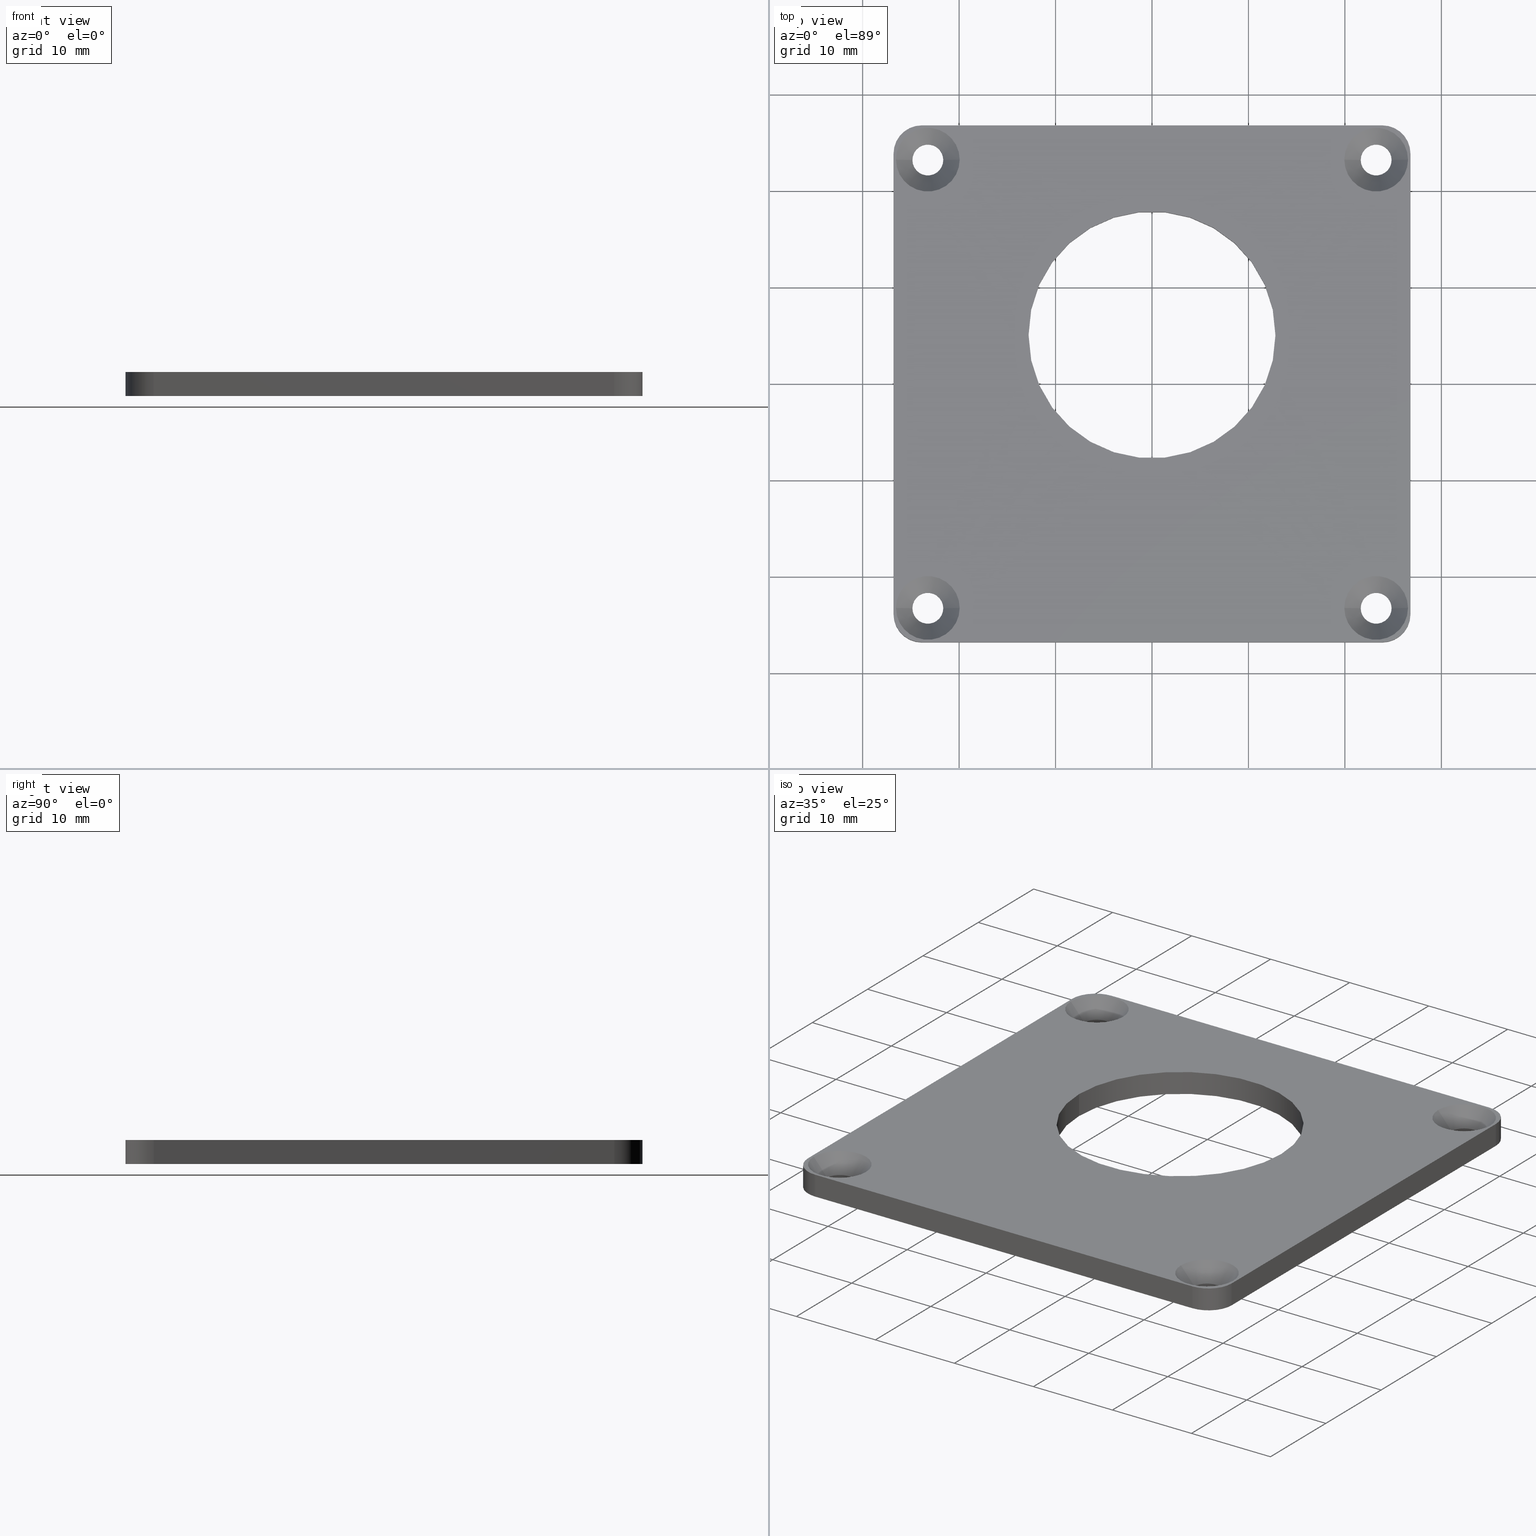
[diagram: canonical four-view strip — front | top / right | iso, engineering-drawing reading convention]
A machine part, canonical four-view strip (front | top / right | iso — engineering-drawing reading convention). The complete STEP part file that produces these views, byte-faithful:
ISO-10303-21;
HEADER;
FILE_DESCRIPTION (( 'STEP AP214' ),
    '1' );
FILE_NAME ('D1300106-v1 aLIGO Pcal Photodetector Cover, Front.STEP',
    '2013-03-09T02:49:46',
    ( 'ligo' ),
    ( 'Microsoft' ),
    'SwSTEP 2.0',
    'SolidWorks 2013',
    '' );
FILE_SCHEMA (( 'AUTOMOTIVE_DESIGN' ));
ENDSEC;

DATA;
#1 = CARTESIAN_POINT ( 'NONE',  ( 0.8519999999999999800, 0.9149999999999999200, -0.02786208485861078900 ) ) ;
#2 = DIRECTION ( 'NONE',  ( 0.0000000000000000000, 0.0000000000000000000, 1.000000000000000000 ) ) ;
#3 = FACE_OUTER_BOUND ( 'NONE', #448, .T. ) ;
#4 = CARTESIAN_POINT ( 'NONE',  ( 0.8519999999999999800, 0.9149999999999999200, 0.04921259842519685300 ) ) ;
#5 = ORIENTED_EDGE ( 'NONE', *, *, #833, .F. ) ;
#6 = AXIS2_PLACEMENT_3D ( 'NONE', #835, #741, #600 ) ;
#7 = DIRECTION ( 'NONE',  ( 1.000000000000000000, 0.0000000000000000000, 0.0000000000000000000 ) ) ;
#8 = ORIENTED_EDGE ( 'NONE', *, *, #403, .F. ) ;
#9 = VECTOR ( 'NONE', #836, 39.37007874015748100 ) ;
#10 = ORIENTED_EDGE ( 'NONE', *, *, #829, .F. ) ;
#11 = VECTOR ( 'NONE', #581, 39.37007874015748100 ) ;
#12 = VECTOR ( 'NONE', #724, 39.37007874015748100 ) ;
#13 = CARTESIAN_POINT ( 'NONE',  ( 0.9399999999999999500, 1.055000000000000200, 0.04921259842519685300 ) ) ;
#14 = DIRECTION ( 'NONE',  ( 0.6560590289905072800, 0.0000000000000000000, 0.7547095802227720100 ) ) ;
#15 = VECTOR ( 'NONE', #700, 39.37007874015748100 ) ;
#16 = LINE ( 'NONE', #30, #715 ) ;
#17 = ORIENTED_EDGE ( 'NONE', *, *, #53, .F. ) ;
#18 = FACE_BOUND ( 'NONE', #816, .T. ) ;
#19 = CARTESIAN_POINT ( 'NONE',  ( -0.9399999999999999500, -1.055000000000000200, -0.04921259842519685300 ) ) ;
#20 = ORIENTED_EDGE ( 'NONE', *, *, #311, .F. ) ;
#21 = VECTOR ( 'NONE', #768, 39.37007874015748100 ) ;
#22 = EDGE_CURVE ( 'NONE', #772, #792, #690, .T. ) ;
#23 = DIRECTION ( 'NONE',  ( 0.0000000000000000000, 0.0000000000000000000, 1.000000000000000000 ) ) ;
#24 = CARTESIAN_POINT ( 'NONE',  ( 0.7849999999999999200, 0.9149999999999999200, 0.04921259842519685300 ) ) ;
#25 = DIRECTION ( 'NONE',  ( 1.000000000000000000, 0.0000000000000000000, 0.0000000000000000000 ) ) ;
#26 = CARTESIAN_POINT ( 'NONE',  ( -0.9780000000000002000, 0.9149999999999999200, 0.04921259842519685300 ) ) ;
#27 = CARTESIAN_POINT ( 'NONE',  ( 0.9399999999999999500, 1.055000000000000200, 0.04921259842519685300 ) ) ;
#28 = CONICAL_SURFACE ( 'NONE', #163, 0.1299999999999999800, 0.7155849933176751100 ) ;
#29 = ORIENTED_EDGE ( 'NONE', *, *, #223, .F. ) ;
#30 = CARTESIAN_POINT ( 'NONE',  ( 0.9780000000000002000, -0.9150000000000002600, 0.04921259842519685300 ) ) ;
#31 = ORIENTED_EDGE ( 'NONE', *, *, #477, .F. ) ;
#32 = LINE ( 'NONE', #26, #12 ) ;
#33 = VERTEX_POINT ( 'NONE', #512 ) ;
#34 = LINE ( 'NONE', #796, #844 ) ;
#35 = AXIS2_PLACEMENT_3D ( 'NONE', #529, #333, #822 ) ;
#36 = EDGE_CURVE ( 'NONE', #624, #533, #176, .T. ) ;
#37 = DIRECTION ( 'NONE',  ( -0.0000000000000000000, -0.0000000000000000000, -1.000000000000000000 ) ) ;
#38 = CARTESIAN_POINT ( 'NONE',  ( -0.5040000000000000000, 0.2000000000000000900, -0.04921259842519685300 ) ) ;
#39 = DIRECTION ( 'NONE',  ( 0.0000000000000000000, 0.0000000000000000000, 1.000000000000000000 ) ) ;
#40 = UNCERTAINTY_MEASURE_WITH_UNIT (LENGTH_MEASURE( 1.000000000000000100E-005 ), #874, 'distance_accuracy_value', 'NONE');
#41 = CIRCLE ( 'NONE', #642, 0.5040000000000000000 ) ;
#42 = EDGE_CURVE ( 'NONE', #787, #490, #693, .T. ) ;
#43 = CIRCLE ( 'NONE', #848, 0.1299999999999999800 ) ;
#44 = CARTESIAN_POINT ( 'NONE',  ( -0.8520000000000002000, 0.9149999999999999200, 0.04921259842519685300 ) ) ;
#45 = AXIS2_PLACEMENT_3D ( 'NONE', #860, #900, #775 ) ;
#46 = CARTESIAN_POINT ( 'NONE',  ( 0.9399999999999999500, 0.9399999999999999500, 0.04921259842519685300 ) ) ;
#47 = EDGE_CURVE ( 'NONE', #155, #241, #604, .T. ) ;
#48 = VECTOR ( 'NONE', #330, 39.37007874015748100 ) ;
#49 = VECTOR ( 'NONE', #858, 39.37007874015748100 ) ;
#50 = VERTEX_POINT ( 'NONE', #776 ) ;
#51 = CARTESIAN_POINT ( 'NONE',  ( 0.8520000000000002000, -0.9150000000000002600, -0.02786208485861078900 ) ) ;
#52 = ADVANCED_FACE ( 'NONE', ( #827 ), #452, .F. ) ;
#53 = EDGE_CURVE ( 'NONE', #259, #779, #760, .T. ) ;
#54 = VERTEX_POINT ( 'NONE', #289 ) ;
#55 = ADVANCED_FACE ( 'NONE', ( #424 ), #910, .F. ) ;
#56 = ORIENTED_EDGE ( 'NONE', *, *, #369, .F. ) ;
#57 = EDGE_LOOP ( 'NONE', ( #480, #865, #344, #547 ) ) ;
#58 = DIMENSIONAL_EXPONENTS ( 1.000000000000000000, 0.0000000000000000000, 0.0000000000000000000, 0.0000000000000000000, 0.0000000000000000000, 0.0000000000000000000, 0.0000000000000000000 ) ;
#59 = CARTESIAN_POINT ( 'NONE',  ( 0.9149999999999999200, 0.9149999999999999200, -0.04921259842519683200 ) ) ;
#60 = AXIS2_PLACEMENT_3D ( 'NONE', #797, #544, #806 ) ;
#61 = CARTESIAN_POINT ( 'NONE',  ( -0.9150000000000002600, -0.9150000000000002600, 0.04921259842519685300 ) ) ;
#62 = ORIENTED_EDGE ( 'NONE', *, *, #297, .T. ) ;
#63 = FACE_OUTER_BOUND ( 'NONE', #446, .T. ) ;
#64 = ORIENTED_EDGE ( 'NONE', *, *, #478, .T. ) ;
#65 = ORIENTED_EDGE ( 'NONE', *, *, #791, .F. ) ;
#66 = PLANE ( 'NONE',  #627 ) ;
#67 = CARTESIAN_POINT ( 'NONE',  ( 0.9149999999999999200, 0.9149999999999999200, 0.04921259842519685300 ) ) ;
#68 = EDGE_CURVE ( 'NONE', #303, #182, #483, .T. ) ;
#69 = FILL_AREA_STYLE ('',( #777 ) ) ;
#70 = EDGE_CURVE ( 'NONE', #493, #901, #165, .T. ) ;
#71 = CONICAL_SURFACE ( 'NONE', #462, 0.1299999999999999800, 0.7155849933176751100 ) ;
#72 = VECTOR ( 'NONE', #245, 39.37007874015748100 ) ;
#73 = ORIENTED_EDGE ( 'NONE', *, *, #454, .T. ) ;
#74 = AXIS2_PLACEMENT_3D ( 'NONE', #457, #674, #361 ) ;
#75 = ORIENTED_EDGE ( 'NONE', *, *, #320, .F. ) ;
#76 = CARTESIAN_POINT ( 'NONE',  ( -1.054999999999999500, 0.9399999999999999500, 0.04921259842519685300 ) ) ;
#77 = EDGE_LOOP ( 'NONE', ( #337, #327 ) ) ;
#78 = VERTEX_POINT ( 'NONE', #875 ) ;
#79 = AXIS2_PLACEMENT_3D ( 'NONE', #736, #332, #2 ) ;
#80 = DIRECTION ( 'NONE',  ( 1.000000000000000000, 0.0000000000000000000, 0.0000000000000000000 ) ) ;
#81 = PRODUCT_DEFINITION_CONTEXT ( 'detailed design', #680, 'design' ) ;
#82 = VERTEX_POINT ( 'NONE', #673 ) ;
#83 = EDGE_LOOP ( 'NONE', ( #10, #86, #503, #916 ) ) ;
#84 = CARTESIAN_POINT ( 'NONE',  ( -1.045000000000000200, -0.9150000000000002600, 0.04921259842519685300 ) ) ;
#85 = EDGE_CURVE ( 'NONE', #904, #853, #34, .T. ) ;
#86 = ORIENTED_EDGE ( 'NONE', *, *, #68, .T. ) ;
#87 = DIRECTION ( 'NONE',  ( 0.6560590289905072800, 0.0000000000000000000, 0.7547095802227720100 ) ) ;
#88 = ORIENTED_EDGE ( 'NONE', *, *, #914, .T. ) ;
#89 = CARTESIAN_POINT ( 'NONE',  ( 0.9150000000000002600, -0.9150000000000002600, -0.04921259842519683200 ) ) ;
#90 = CARTESIAN_POINT ( 'NONE',  ( -0.9399999999999999500, 1.055000000000000200, 0.04921259842519685300 ) ) ;
#91 = CARTESIAN_POINT ( 'NONE',  ( -0.9399999999999999500, 1.055000000000000200, 0.04921259842519685300 ) ) ;
#92 = DIRECTION ( 'NONE',  ( 1.000000000000000000, 0.0000000000000000000, 0.0000000000000000000 ) ) ;
#93 = FILL_AREA_STYLE_COLOUR ( '', #632 ) ;
#94 = DIRECTION ( 'NONE',  ( 0.0000000000000000000, 0.0000000000000000000, 1.000000000000000000 ) ) ;
#95 = EDGE_CURVE ( 'NONE', #405, #567, #662, .T. ) ;
#96 = EDGE_LOOP ( 'NONE', ( #883, #5, #876, #814 ) ) ;
#97 = CARTESIAN_POINT ( 'NONE',  ( 0.9399999999999999500, 1.055000000000000200, -0.04921259842519685300 ) ) ;
#98 = FACE_OUTER_BOUND ( 'NONE', #466, .T. ) ;
#99 = EDGE_LOOP ( 'NONE', ( #755, #357, #532, #629 ) ) ;
#100 = ORIENTED_EDGE ( 'NONE', *, *, #95, .T. ) ;
#101 = CYLINDRICAL_SURFACE ( 'NONE', #501, 0.06299999999999998700 ) ;
#102 = VERTEX_POINT ( 'NONE', #898 ) ;
#103 = CARTESIAN_POINT ( 'NONE',  ( 0.9399999999999999500, -1.054999999999999700, 0.04921259842519685300 ) ) ;
#104 = CARTESIAN_POINT ( 'NONE',  ( -0.9399999999999999500, -1.055000000000000200, 0.04921259842519685300 ) ) ;
#105 = DIRECTION ( 'NONE',  ( 1.000000000000000000, 0.0000000000000000000, 0.0000000000000000000 ) ) ;
#106 = AXIS2_PLACEMENT_3D ( 'NONE', #575, #23, #720 ) ;
#107 =( LENGTH_UNIT ( ) NAMED_UNIT ( * ) SI_UNIT ( $, .METRE. ) );
#108 = ORIENTED_EDGE ( 'NONE', *, *, #238, .T. ) ;
#109 = DIRECTION ( 'NONE',  ( 1.000000000000000000, 0.0000000000000000000, 0.0000000000000000000 ) ) ;
#110 = CYLINDRICAL_SURFACE ( 'NONE', #510, 0.1149999999999998700 ) ;
#111 = ORIENTED_EDGE ( 'NONE', *, *, #366, .F. ) ;
#112 = EDGE_CURVE ( 'NONE', #217, #851, #335, .T. ) ;
#113 = DIRECTION ( 'NONE',  ( -0.0000000000000000000, -0.0000000000000000000, -1.000000000000000000 ) ) ;
#114 = EDGE_CURVE ( 'NONE', #853, #405, #919, .T. ) ;
#115 = ADVANCED_FACE ( 'NONE', ( #751 ), #838, .F. ) ;
#116 = PRESENTATION_STYLE_ASSIGNMENT (( #521 ) ) ;
#117 = VERTEX_POINT ( 'NONE', #785 ) ;
#118 = EDGE_CURVE ( 'NONE', #772, #102, #556, .T. ) ;
#119 = DIRECTION ( 'NONE',  ( -0.0000000000000000000, -0.0000000000000000000, 1.000000000000000000 ) ) ;
#120 = VECTOR ( 'NONE', #799, 39.37007874015748100 ) ;
#121 = CARTESIAN_POINT ( 'NONE',  ( 1.054999999999999700, 0.9399999999999999500, -0.04921259842519685300 ) ) ;
#122 = VERTEX_POINT ( 'NONE', #27 ) ;
#123 = ADVANCED_FACE ( 'NONE', ( #522 ), #862, .F. ) ;
#124 = ORIENTED_EDGE ( 'NONE', *, *, #320, .T. ) ;
#125 = LINE ( 'NONE', #856, #346 ) ;
#126 = CARTESIAN_POINT ( 'NONE',  ( 0.9399999999999999500, -0.9399999999999999500, -0.04921259842519685300 ) ) ;
#127 = EDGE_CURVE ( 'NONE', #382, #293, #540, .T. ) ;
#128 = CARTESIAN_POINT ( 'NONE',  ( -0.8520000000000002000, -0.9150000000000002600, 0.04921259842519685300 ) ) ;
#129 = EDGE_CURVE ( 'NONE', #792, #772, #889, .T. ) ;
#130 = DIRECTION ( 'NONE',  ( -0.0000000000000000000, -0.0000000000000000000, 1.000000000000000000 ) ) ;
#131 = ORIENTED_EDGE ( 'NONE', *, *, #213, .T. ) ;
#132 = CIRCLE ( 'NONE', #878, 0.06299999999999998700 ) ;
#133 = ORIENTED_EDGE ( 'NONE', *, *, #847, .F. ) ;
#134 = FACE_OUTER_BOUND ( 'NONE', #96, .T. ) ;
#135 = ORIENTED_EDGE ( 'NONE', *, *, #85, .T. ) ;
#136 = ORIENTED_EDGE ( 'NONE', *, *, #262, .T. ) ;
#137 = EDGE_CURVE ( 'NONE', #82, #872, #258, .T. ) ;
#138 = ORIENTED_EDGE ( 'NONE', *, *, #759, .T. ) ;
#139 = ORIENTED_EDGE ( 'NONE', *, *, #70, .T. ) ;
#140 = CIRCLE ( 'NONE', #216, 0.06299999999999998700 ) ;
#141 = ORIENTED_EDGE ( 'NONE', *, *, #345, .F. ) ;
#142 = ORIENTED_EDGE ( 'NONE', *, *, #256, .T. ) ;
#143 = EDGE_CURVE ( 'NONE', #382, #721, #211, .T. ) ;
#144 = CIRCLE ( 'NONE', #692, 0.1299999999999999800 ) ;
#145 =( NAMED_UNIT ( * ) PLANE_ANGLE_UNIT ( ) SI_UNIT ( $, .RADIAN. ) );
#146 =( CONVERSION_BASED_UNIT ( 'INCH', #670 ) LENGTH_UNIT ( ) NAMED_UNIT ( #467 ) );
#147 = LINE ( 'NONE', #562, #21 ) ;
#148 = DIRECTION ( 'NONE',  ( -0.0000000000000000000, -0.0000000000000000000, 1.000000000000000000 ) ) ;
#149 = DIRECTION ( 'NONE',  ( -0.6560590289905072800, 8.034405899049453800E-017, 0.7547095802227720100 ) ) ;
#150 = AXIS2_PLACEMENT_3D ( 'NONE', #89, #148, #92 ) ;
#151 = DIRECTION ( 'NONE',  ( -0.0000000000000000000, -0.0000000000000000000, 1.000000000000000000 ) ) ;
#152 = CIRCLE ( 'NONE', #412, 0.1149999999999998700 ) ;
#153 = EDGE_LOOP ( 'NONE', ( #302, #840, #29, #654 ) ) ;
#154 = ORIENTED_EDGE ( 'NONE', *, *, #353, .F. ) ;
#155 = VERTEX_POINT ( 'NONE', #206 ) ;
#156 = LINE ( 'NONE', #128, #120 ) ;
#157 = AXIS2_PLACEMENT_3D ( 'NONE', #492, #730, #181 ) ;
#158 = CARTESIAN_POINT ( 'NONE',  ( 0.9399999999999999500, -1.054999999999999700, 0.04921259842519685300 ) ) ;
#159 = DIRECTION ( 'NONE',  ( 1.000000000000000000, 0.0000000000000000000, 0.0000000000000000000 ) ) ;
#160 = DIRECTION ( 'NONE',  ( -0.0000000000000000000, -0.0000000000000000000, 1.000000000000000000 ) ) ;
#161 = DIRECTION ( 'NONE',  ( 1.000000000000000000, 0.0000000000000000000, -0.0000000000000000000 ) ) ;
#162 = DIRECTION ( 'NONE',  ( -0.0000000000000000000, -0.0000000000000000000, 1.000000000000000000 ) ) ;
#163 = AXIS2_PLACEMENT_3D ( 'NONE', #770, #162, #846 ) ;
#164 =( NAMED_UNIT ( * ) SI_UNIT ( $, .STERADIAN. ) SOLID_ANGLE_UNIT ( ) );
#165 = CIRCLE ( 'NONE', #150, 0.06299999999999998700 ) ;
#166 = DIRECTION ( 'NONE',  ( 0.0000000000000000000, 0.0000000000000000000, 1.000000000000000000 ) ) ;
#167 = DIRECTION ( 'NONE',  ( 1.000000000000000000, 0.0000000000000000000, 0.0000000000000000000 ) ) ;
#168 = CARTESIAN_POINT ( 'NONE',  ( 0.9150000000000002600, -0.9150000000000002600, -0.04921259842519683200 ) ) ;
#169 = FACE_OUTER_BOUND ( 'NONE', #817, .T. ) ;
#170 = CARTESIAN_POINT ( 'NONE',  ( -0.9399999999999999500, 0.9399999999999999500, -0.04921259842519685300 ) ) ;
#171 = EDGE_LOOP ( 'NONE', ( #652, #884 ) ) ;
#172 = ORIENTED_EDGE ( 'NONE', *, *, #478, .F. ) ;
#173 = CARTESIAN_POINT ( 'NONE',  ( 0.9149999999999999200, 0.9149999999999999200, 0.04921259842519685300 ) ) ;
#174 = DIRECTION ( 'NONE',  ( 0.0000000000000000000, 0.0000000000000000000, 1.000000000000000000 ) ) ;
#175 = AXIS2_PLACEMENT_3D ( 'NONE', #76, #161, #619 ) ;
#176 = CIRCLE ( 'NONE', #342, 0.1299999999999999800 ) ;
#177 = CARTESIAN_POINT ( 'NONE',  ( 0.8520000000000002000, -0.9150000000000002600, 0.04921259842519685300 ) ) ;
#178 = DIRECTION ( 'NONE',  ( -0.0000000000000000000, -0.0000000000000000000, 1.000000000000000000 ) ) ;
#179 = AXIS2_PLACEMENT_3D ( 'NONE', #660, #39, #740 ) ;
#180 = DIRECTION ( 'NONE',  ( -0.0000000000000000000, -0.0000000000000000000, 1.000000000000000000 ) ) ;
#181 = DIRECTION ( 'NONE',  ( 1.000000000000000000, 0.0000000000000000000, 0.0000000000000000000 ) ) ;
#182 = VERTEX_POINT ( 'NONE', #1 ) ;
#183 = CARTESIAN_POINT ( 'NONE',  ( 0.9149999999999999200, 0.9149999999999999200, 0.04921259842519685300 ) ) ;
#184 = ORIENTED_EDGE ( 'NONE', *, *, #287, .T. ) ;
#185 = VECTOR ( 'NONE', #820, 39.37007874015748100 ) ;
#186 = CARTESIAN_POINT ( 'NONE',  ( -1.045000000000000200, -0.9150000000000002600, 0.04921259842519685300 ) ) ;
#187 = CIRCLE ( 'NONE', #905, 0.06299999999999998700 ) ;
#188 = EDGE_CURVE ( 'NONE', #182, #753, #267, .T. ) ;
#189 = CARTESIAN_POINT ( 'NONE',  ( 0.9149999999999999200, 0.9149999999999999200, -0.02786208485861078900 ) ) ;
#190 = CARTESIAN_POINT ( 'NONE',  ( -0.9399999999999999500, -1.055000000000000200, 0.04921259842519685300 ) ) ;
#191 = EDGE_CURVE ( 'NONE', #882, #273, #140, .T. ) ;
#192 = DIRECTION ( 'NONE',  ( 0.0000000000000000000, 0.0000000000000000000, 1.000000000000000000 ) ) ;
#193 = CARTESIAN_POINT ( 'NONE',  ( 0.9399999999999999500, 0.9399999999999999500, -0.04921259842519685300 ) ) ;
#194 = ADVANCED_FACE ( 'NONE', ( #880 ), #28, .F. ) ;
#195 = VECTOR ( 'NONE', #14, 39.37007874015748100 ) ;
#196 = ORIENTED_EDGE ( 'NONE', *, *, #129, .F. ) ;
#197 = CIRCLE ( 'NONE', #209, 0.1299999999999999800 ) ;
#198 = CARTESIAN_POINT ( 'NONE',  ( -0.5040000000000000000, 0.2000000000000000900, 0.04921259842519685300 ) ) ;
#199 = ADVANCED_FACE ( 'NONE', ( #98 ), #530, .T. ) ;
#200 = DIRECTION ( 'NONE',  ( 1.000000000000000000, 0.0000000000000000000, 0.0000000000000000000 ) ) ;
#201 = DIRECTION ( 'NONE',  ( 1.000000000000000000, 0.0000000000000000000, 0.0000000000000000000 ) ) ;
#202 = CYLINDRICAL_SURFACE ( 'NONE', #74, 0.5040000000000000000 ) ;
#203 = ORIENTED_EDGE ( 'NONE', *, *, #353, .T. ) ;
#204 = DIMENSIONAL_EXPONENTS ( 1.000000000000000000, 0.0000000000000000000, 0.0000000000000000000, 0.0000000000000000000, 0.0000000000000000000, 0.0000000000000000000, 0.0000000000000000000 ) ;
#205 = ORIENTED_EDGE ( 'NONE', *, *, #387, .F. ) ;
#206 = CARTESIAN_POINT ( 'NONE',  ( -0.7850000000000002500, 0.9149999999999999200, 0.04921259842519685300 ) ) ;
#207 = CIRCLE ( 'NONE', #618, 0.5040000000000000000 ) ;
#208 = ORIENTED_EDGE ( 'NONE', *, *, #833, .T. ) ;
#209 = AXIS2_PLACEMENT_3D ( 'NONE', #429, #526, #296 ) ;
#210 = LINE ( 'NONE', #91, #185 ) ;
#211 = LINE ( 'NONE', #401, #918 ) ;
#212 = AXIS2_PLACEMENT_3D ( 'NONE', #168, #469, #7 ) ;
#213 = EDGE_CURVE ( 'NONE', #901, #493, #879, .T. ) ;
#214 = DIRECTION ( 'NONE',  ( -0.0000000000000000000, -0.0000000000000000000, 1.000000000000000000 ) ) ;
#215 = DIRECTION ( 'NONE',  ( -0.0000000000000000000, -0.0000000000000000000, 1.000000000000000000 ) ) ;
#216 = AXIS2_PLACEMENT_3D ( 'NONE', #659, #276, #453 ) ;
#217 = VERTEX_POINT ( 'NONE', #422 ) ;
#218 = FACE_OUTER_BOUND ( 'NONE', #153, .T. ) ;
#219 = VERTEX_POINT ( 'NONE', #97 ) ;
#220 = CARTESIAN_POINT ( 'NONE',  ( -0.9780000000000002000, 0.9149999999999999200, -0.02786208485861078900 ) ) ;
#221 = DIRECTION ( 'NONE',  ( 0.0000000000000000000, 1.000000000000000000, 0.0000000000000000000 ) ) ;
#222 = DIRECTION ( 'NONE',  ( -0.0000000000000000000, -0.0000000000000000000, 1.000000000000000000 ) ) ;
#223 = EDGE_CURVE ( 'NONE', #217, #122, #885, .T. ) ;
#224 = FACE_BOUND ( 'NONE', #473, .T. ) ;
#225 = CARTESIAN_POINT ( 'NONE',  ( -0.9399999999999999500, -0.9399999999999999500, 0.04921259842519685300 ) ) ;
#226 = CARTESIAN_POINT ( 'NONE',  ( 0.0000000000000000000, 0.2000000000000000100, 0.04921259842519685300 ) ) ;
#227 = CARTESIAN_POINT ( 'NONE',  ( 0.0000000000000000000, 0.2000000000000000100, -0.04921259842519685300 ) ) ;
#228 = AXIS2_PLACEMENT_3D ( 'NONE', #126, #192, #859 ) ;
#229 = ORIENTED_EDGE ( 'NONE', *, *, #764, .F. ) ;
#230 = EDGE_LOOP ( 'NONE', ( #795, #519, #539, #749, #268, #423, #639, #254 ) ) ;
#231 = DIRECTION ( 'NONE',  ( -0.0000000000000000000, -0.0000000000000000000, 1.000000000000000000 ) ) ;
#232 = AXIS2_PLACEMENT_3D ( 'NONE', #818, #329, #735 ) ;
#233 = CARTESIAN_POINT ( 'NONE',  ( -0.8520000000000002000, 0.9149999999999999200, -0.04921259842519683200 ) ) ;
#234 = CARTESIAN_POINT ( 'NONE',  ( -0.9399999999999999500, -1.055000000000000200, 0.04921259842519685300 ) ) ;
#235 = EDGE_CURVE ( 'NONE', #78, #33, #651, .T. ) ;
#236 = APPLICATION_PROTOCOL_DEFINITION ( 'draft international standard', 'automotive_design', 1998, #680 ) ;
#237 = CARTESIAN_POINT ( 'NONE',  ( -0.9399999999999999500, -1.055000000000000200, -0.04921259842519685300 ) ) ;
#238 = EDGE_CURVE ( 'NONE', #901, #273, #16, .T. ) ;
#239 = LINE ( 'NONE', #643, #538 ) ;
#240 = PLANE ( 'NONE',  #79 ) ;
#241 = VERTEX_POINT ( 'NONE', #251 ) ;
#242 = CARTESIAN_POINT ( 'NONE',  ( -1.054999999999999500, 0.9399999999999999500, 0.04921259842519685300 ) ) ;
#243 = CARTESIAN_POINT ( 'NONE',  ( -0.9150000000000002600, 0.9149999999999999200, -0.02786208485861078900 ) ) ;
#244 = DIRECTION ( 'NONE',  ( -1.000000000000000000, 0.0000000000000000000, 0.0000000000000000000 ) ) ;
#245 = DIRECTION ( 'NONE',  ( -0.0000000000000000000, -0.0000000000000000000, 1.000000000000000000 ) ) ;
#246 = DIRECTION ( 'NONE',  ( 1.000000000000000000, 0.0000000000000000000, 0.0000000000000000000 ) ) ;
#247 = CARTESIAN_POINT ( 'NONE',  ( 0.9149999999999999200, 0.9149999999999999200, -0.02786208485861078900 ) ) ;
#248 = CARTESIAN_POINT ( 'NONE',  ( 0.9399999999999999500, -1.054999999999999700, -0.04921259842519685300 ) ) ;
#249 = DIRECTION ( 'NONE',  ( -0.0000000000000000000, -0.0000000000000000000, 1.000000000000000000 ) ) ;
#250 = ORIENTED_EDGE ( 'NONE', *, *, #235, .F. ) ;
#251 = CARTESIAN_POINT ( 'NONE',  ( -1.045000000000000200, 0.9149999999999999200, 0.04921259842519685300 ) ) ;
#252 = ORIENTED_EDGE ( 'NONE', *, *, #36, .F. ) ;
#253 = ORIENTED_EDGE ( 'NONE', *, *, #70, .F. ) ;
#254 = ORIENTED_EDGE ( 'NONE', *, *, #274, .T. ) ;
#255 = CARTESIAN_POINT ( 'NONE',  ( -0.9150000000000002600, 0.9149999999999999200, 0.04921259842519685300 ) ) ;
#256 = EDGE_CURVE ( 'NONE', #463, #241, #805, .T. ) ;
#257 = AXIS2_PLACEMENT_3D ( 'NONE', #380, #377, #811 ) ;
#258 = CIRCLE ( 'NONE', #261, 0.06299999999999998700 ) ;
#259 = VERTEX_POINT ( 'NONE', #657 ) ;
#260 = VECTOR ( 'NONE', #780, 39.37007874015748100 ) ;
#261 = AXIS2_PLACEMENT_3D ( 'NONE', #425, #119, #596 ) ;
#262 = EDGE_CURVE ( 'NONE', #753, #542, #197, .T. ) ;
#263 = PRODUCT_RELATED_PRODUCT_CATEGORY ( 'part', '', ( #734 ) ) ;
#264 = DIRECTION ( 'NONE',  ( -0.0000000000000000000, -0.0000000000000000000, 1.000000000000000000 ) ) ;
#265 = ADVANCED_FACE ( 'NONE', ( #372 ), #754, .F. ) ;
#266 = VECTOR ( 'NONE', #678, 39.37007874015748100 ) ;
#267 = LINE ( 'NONE', #24, #9 ) ;
#268 = ORIENTED_EDGE ( 'NONE', *, *, #903, .T. ) ;
#269 = ADVANCED_FACE ( 'NONE', ( #443 ), #551, .F. ) ;
#270 = AXIS2_PLACEMENT_3D ( 'NONE', #255, #714, #348 ) ;
#271 = EDGE_LOOP ( 'NONE', ( #154, #354, #336, #300 ) ) ;
#272 = VECTOR ( 'NONE', #381, 39.37007874015748100 ) ;
#273 = VERTEX_POINT ( 'NONE', #481 ) ;
#274 = EDGE_CURVE ( 'NONE', #122, #787, #147, .T. ) ;
#275 = DIRECTION ( 'NONE',  ( 1.000000000000000000, 0.0000000000000000000, 0.0000000000000000000 ) ) ;
#276 = DIRECTION ( 'NONE',  ( -0.0000000000000000000, -0.0000000000000000000, 1.000000000000000000 ) ) ;
#277 = AXIS2_PLACEMENT_3D ( 'NONE', #433, #691, #800 ) ;
#278 = CARTESIAN_POINT ( 'NONE',  ( -0.9150000000000002600, -0.9150000000000002600, 0.04921259842519685300 ) ) ;
#279 = AXIS2_PLACEMENT_3D ( 'NONE', #243, #598, #159 ) ;
#280 = VERTEX_POINT ( 'NONE', #325 ) ;
#281 = DIRECTION ( 'NONE',  ( 1.000000000000000000, 0.0000000000000000000, 0.0000000000000000000 ) ) ;
#282 = FACE_OUTER_BOUND ( 'NONE', #671, .T. ) ;
#283 = ORIENTED_EDGE ( 'NONE', *, *, #920, .F. ) ;
#284 = LINE ( 'NONE', #497, #711 ) ;
#285 = CARTESIAN_POINT ( 'NONE',  ( 0.9779999999999998700, 0.9149999999999999200, 0.04921259842519685300 ) ) ;
#286 = DIRECTION ( 'NONE',  ( -0.0000000000000000000, -0.0000000000000000000, 1.000000000000000000 ) ) ;
#287 = EDGE_CURVE ( 'NONE', #122, #219, #744, .T. ) ;
#288 = LINE ( 'NONE', #757, #356 ) ;
#289 = CARTESIAN_POINT ( 'NONE',  ( -1.054999999999999700, -0.9399999999999999500, 0.04921259842519685300 ) ) ;
#290 = FACE_OUTER_BOUND ( 'NONE', #271, .T. ) ;
#291 = FACE_OUTER_BOUND ( 'NONE', #679, .T. ) ;
#292 = ORIENTED_EDGE ( 'NONE', *, *, #386, .T. ) ;
#293 = VERTEX_POINT ( 'NONE', #616 ) ;
#294 = AXIS2_PLACEMENT_3D ( 'NONE', #189, #249, #281 ) ;
#295 = CARTESIAN_POINT ( 'NONE',  ( 1.054999999999999500, 0.9399999999999999500, -0.04921259842519685300 ) ) ;
#296 = DIRECTION ( 'NONE',  ( 1.000000000000000000, 0.0000000000000000000, 0.0000000000000000000 ) ) ;
#297 = EDGE_CURVE ( 'NONE', #241, #155, #484, .T. ) ;
#298 = VECTOR ( 'NONE', #881, 39.37007874015748100 ) ;
#299 = DIRECTION ( 'NONE',  ( -0.6560590289905072800, 8.034405899049453800E-017, 0.7547095802227720100 ) ) ;
#300 = ORIENTED_EDGE ( 'NONE', *, *, #36, .T. ) ;
#301 = ADVANCED_BREP_SHAPE_REPRESENTATION ( 'D1300106-v1 aLIGO Pcal Photodetector Cover, Front', ( #447, #470 ), #788 ) ;
#302 = ORIENTED_EDGE ( 'NONE', *, *, #697, .T. ) ;
#303 = VERTEX_POINT ( 'NONE', #839 ) ;
#304 = DIRECTION ( 'NONE',  ( -1.000000000000000000, -0.0000000000000000000, -0.0000000000000000000 ) ) ;
#305 = ADVANCED_FACE ( 'NONE', ( #290 ), #566, .F. ) ;
#306 = CARTESIAN_POINT ( 'NONE',  ( 0.7850000000000002500, -0.9150000000000002600, 0.04921259842519685300 ) ) ;
#307 = DIRECTION ( 'NONE',  ( 1.000000000000000000, 0.0000000000000000000, 0.0000000000000000000 ) ) ;
#308 = DIRECTION ( 'NONE',  ( -0.0000000000000000000, -0.0000000000000000000, 1.000000000000000000 ) ) ;
#309 = DIRECTION ( 'NONE',  ( -0.0000000000000000000, -0.0000000000000000000, -1.000000000000000000 ) ) ;
#310 = DIRECTION ( 'NONE',  ( 1.000000000000000000, 0.0000000000000000000, 0.0000000000000000000 ) ) ;
#311 = EDGE_CURVE ( 'NONE', #182, #50, #506, .T. ) ;
#312 = ORIENTED_EDGE ( 'NONE', *, *, #903, .F. ) ;
#313 = ORIENTED_EDGE ( 'NONE', *, *, #585, .T. ) ;
#314 = CYLINDRICAL_SURFACE ( 'NONE', #897, 0.06299999999999998700 ) ;
#315 = CARTESIAN_POINT ( 'NONE',  ( -0.9399999999999999500, 0.9399999999999999500, 0.04921259842519685300 ) ) ;
#316 = DIRECTION ( 'NONE',  ( 1.000000000000000000, 0.0000000000000000000, 0.0000000000000000000 ) ) ;
#317 = EDGE_LOOP ( 'NONE', ( #843, #430, #393, #208 ) ) ;
#318 = EDGE_CURVE ( 'NONE', #787, #464, #210, .T. ) ;
#319 = CARTESIAN_POINT ( 'NONE',  ( 0.9399999999999999500, 0.9399999999999999500, 0.04921259842519685300 ) ) ;
#320 = EDGE_CURVE ( 'NONE', #440, #463, #343, .T. ) ;
#321 = ORIENTED_EDGE ( 'NONE', *, *, #369, .T. ) ;
#322 = PRESENTATION_LAYER_ASSIGNMENT (  '', '', ( #370 ) ) ;
#323 = FACE_OUTER_BOUND ( 'NONE', #230, .T. ) ;
#324 = ORIENTED_EDGE ( 'NONE', *, *, #499, .F. ) ;
#325 = CARTESIAN_POINT ( 'NONE',  ( 0.5040000000000000000, 0.2000000000000000100, 0.04921259842519685300 ) ) ;
#326 = LINE ( 'NONE', #511, #524 ) ;
#327 = ORIENTED_EDGE ( 'NONE', *, *, #127, .T. ) ;
#328 = FACE_BOUND ( 'NONE', #873, .T. ) ;
#329 = DIRECTION ( 'NONE',  ( -0.0000000000000000000, -0.0000000000000000000, 1.000000000000000000 ) ) ;
#330 = DIRECTION ( 'NONE',  ( -0.6560590289905072800, 8.034405899049453800E-017, 0.7547095802227720100 ) ) ;
#331 = EDGE_CURVE ( 'NONE', #872, #82, #773, .T. ) ;
#332 = DIRECTION ( 'NONE',  ( -1.000000000000000000, 0.0000000000000000000, 0.0000000000000000000 ) ) ;
#333 = DIRECTION ( 'NONE',  ( -0.0000000000000000000, -0.0000000000000000000, 1.000000000000000000 ) ) ;
#334 = ADVANCED_FACE ( 'NONE', ( #550 ), #391, .T. ) ;
#335 = LINE ( 'NONE', #431, #769 ) ;
#336 = ORIENTED_EDGE ( 'NONE', *, *, #345, .T. ) ;
#337 = ORIENTED_EDGE ( 'NONE', *, *, #396, .T. ) ;
#338 = ADVANCED_FACE ( 'NONE', ( #352, #891, #360, #475, #224, #559 ), #549, .T. ) ;
#339 = CONICAL_SURFACE ( 'NONE', #157, 0.1299999999999999800, 0.7155849933176751100 ) ;
#340 =( CONVERSION_BASED_UNIT ( 'INCH', #626 ) LENGTH_UNIT ( ) NAMED_UNIT ( #204 ) );
#341 = ORIENTED_EDGE ( 'NONE', *, *, #585, .F. ) ;
#342 = AXIS2_PLACEMENT_3D ( 'NONE', #489, #781, #105 ) ;
#343 = CIRCLE ( 'NONE', #279, 0.06299999999999998700 ) ;
#344 = ORIENTED_EDGE ( 'NONE', *, *, #686, .F. ) ;
#345 = EDGE_CURVE ( 'NONE', #273, #624, #666, .T. ) ;
#346 = VECTOR ( 'NONE', #304, 39.37007874015748100 ) ;
#347 = CARTESIAN_POINT ( 'NONE',  ( 1.045000000000000200, -0.9150000000000002600, 0.04921259842519685300 ) ) ;
#348 = DIRECTION ( 'NONE',  ( 1.000000000000000000, 0.0000000000000000000, 0.0000000000000000000 ) ) ;
#349 = CARTESIAN_POINT ( 'NONE',  ( 0.8520000000000002000, -0.9150000000000002600, -0.04921259842519683200 ) ) ;
#350 = CARTESIAN_POINT ( 'NONE',  ( 0.7849999999999999200, 0.9149999999999999200, 0.04921259842519685300 ) ) ;
#351 = CARTESIAN_POINT ( 'NONE',  ( -0.9150000000000002600, 0.9149999999999999200, 0.04921259842519685300 ) ) ;
#352 = FACE_BOUND ( 'NONE', #77, .T. ) ;
#353 = EDGE_CURVE ( 'NONE', #882, #533, #326, .T. ) ;
#354 = ORIENTED_EDGE ( 'NONE', *, *, #570, .F. ) ;
#355 = CARTESIAN_POINT ( 'NONE',  ( -0.9150000000000002600, 0.9149999999999999200, 0.04921259842519685300 ) ) ;
#356 = VECTOR ( 'NONE', #309, 39.37007874015748100 ) ;
#357 = ORIENTED_EDGE ( 'NONE', *, *, #143, .T. ) ;
#358 = CARTESIAN_POINT ( 'NONE',  ( 0.0000000000000000000, 0.2000000000000000100, 0.04921259842519685300 ) ) ;
#359 = EDGE_LOOP ( 'NONE', ( #892, #411 ) ) ;
#360 = FACE_BOUND ( 'NONE', #667, .T. ) ;
#361 = DIRECTION ( 'NONE',  ( 1.000000000000000000, 0.0000000000000000000, 0.0000000000000000000 ) ) ;
#362 = EDGE_CURVE ( 'NONE', #872, #440, #852, .T. ) ;
#363 = ORIENTED_EDGE ( 'NONE', *, *, #42, .F. ) ;
#364 = FACE_OUTER_BOUND ( 'NONE', #317, .T. ) ;
#365 = ORIENTED_EDGE ( 'NONE', *, *, #911, .F. ) ;
#366 = EDGE_CURVE ( 'NONE', #523, #33, #404, .T. ) ;
#367 = FACE_BOUND ( 'NONE', #482, .T. ) ;
#368 = CYLINDRICAL_SURFACE ( 'NONE', #408, 0.1149999999999998700 ) ;
#369 = EDGE_CURVE ( 'NONE', #78, #102, #752, .T. ) ;
#370 = STYLED_ITEM ( 'NONE', ( #116 ), #447 ) ;
#371 = PRODUCT_CONTEXT ( 'NONE', #625, 'mechanical' ) ;
#372 = FACE_OUTER_BOUND ( 'NONE', #496, .T. ) ;
#373 = EDGE_LOOP ( 'NONE', ( #205, #142, #62, #702 ) ) ;
#374 = FACE_OUTER_BOUND ( 'NONE', #99, .T. ) ;
#375 = DIRECTION ( 'NONE',  ( -0.0000000000000000000, -0.0000000000000000000, -1.000000000000000000 ) ) ;
#376 = CARTESIAN_POINT ( 'NONE',  ( -1.045000000000000200, 0.9149999999999999200, 0.04921259842519685300 ) ) ;
#377 = DIRECTION ( 'NONE',  ( -0.0000000000000000000, -0.0000000000000000000, -1.000000000000000000 ) ) ;
#378 = CONICAL_SURFACE ( 'NONE', #675, 0.1299999999999999800, 0.7155849933176751100 ) ;
#379 = APPLICATION_PROTOCOL_DEFINITION ( 'draft international standard', 'automotive_design', 1998, #625 ) ;
#380 = CARTESIAN_POINT ( 'NONE',  ( 0.9399999999999999500, -0.9399999999999999500, 0.04921259842519685300 ) ) ;
#381 = DIRECTION ( 'NONE',  ( -0.0000000000000000000, -0.0000000000000000000, -1.000000000000000000 ) ) ;
#382 = VERTEX_POINT ( 'NONE', #38 ) ;
#383 = ORIENTED_EDGE ( 'NONE', *, *, #867, .T. ) ;
#384 = VECTOR ( 'NONE', #665, 39.37007874015748100 ) ;
#385 = SURFACE_STYLE_FILL_AREA ( #641 ) ;
#386 = EDGE_CURVE ( 'NONE', #102, #78, #830, .T. ) ;
#387 = EDGE_CURVE ( 'NONE', #463, #440, #495, .T. ) ;
#388 = CARTESIAN_POINT ( 'NONE',  ( 0.5040000000000000000, 0.2000000000000000100, -0.04921259842519685300 ) ) ;
#389 = CARTESIAN_POINT ( 'NONE',  ( 0.0000000000000000000, 0.2000000000000000100, -0.04921259842519685300 ) ) ;
#390 = LENGTH_MEASURE_WITH_UNIT ( LENGTH_MEASURE( 0.02539999999999999900 ), #507 );
#391 = CYLINDRICAL_SURFACE ( 'NONE', #488, 0.1149999999999998700 ) ;
#392 = AXIS2_PLACEMENT_3D ( 'NONE', #765, #722, #698 ) ;
#393 = ORIENTED_EDGE ( 'NONE', *, *, #543, .T. ) ;
#394 = ADVANCED_FACE ( 'NONE', ( #762 ), #368, .T. ) ;
#395 = DIRECTION ( 'NONE',  ( -0.0000000000000000000, -0.0000000000000000000, 1.000000000000000000 ) ) ;
#396 = EDGE_CURVE ( 'NONE', #293, #382, #207, .T. ) ;
#397 = DIRECTION ( 'NONE',  ( 1.000000000000000000, 0.0000000000000000000, 0.0000000000000000000 ) ) ;
#398 =( NAMED_UNIT ( * ) SI_UNIT ( $, .STERADIAN. ) SOLID_ANGLE_UNIT ( ) );
#399 = ADVANCED_FACE ( 'NONE', ( #613 ), #576, .F. ) ;
#400 = PLANE ( 'NONE',  #60 ) ;
#401 = CARTESIAN_POINT ( 'NONE',  ( -0.5040000000000000000, 0.2000000000000000900, -0.04921259842519685300 ) ) ;
#402 = AXIS2_PLACEMENT_3D ( 'NONE', #826, #214, #109 ) ;
#403 = EDGE_CURVE ( 'NONE', #490, #259, #745, .T. ) ;
#404 = CIRCLE ( 'NONE', #6, 0.1299999999999999800 ) ;
#405 = VERTEX_POINT ( 'NONE', #248 ) ;
#406 = ORIENTED_EDGE ( 'NONE', *, *, #908, .F. ) ;
#407 = FACE_BOUND ( 'NONE', #854, .T. ) ;
#408 = AXIS2_PLACEMENT_3D ( 'NONE', #315, #485, #630 ) ;
#409 = LINE ( 'NONE', #190, #552 ) ;
#410 = FACE_OUTER_BOUND ( 'NONE', #373, .T. ) ;
#411 = ORIENTED_EDGE ( 'NONE', *, *, #137, .T. ) ;
#412 = AXIS2_PLACEMENT_3D ( 'NONE', #743, #606, #275 ) ;
#413 = AXIS2_PLACEMENT_3D ( 'NONE', #173, #286, #167 ) ;
#414 = DIRECTION ( 'NONE',  ( 0.0000000000000000000, 0.0000000000000000000, 1.000000000000000000 ) ) ;
#415 = DIRECTION ( 'NONE',  ( 0.0000000000000000000, -0.0000000000000000000, 1.000000000000000000 ) ) ;
#416 = CARTESIAN_POINT ( 'NONE',  ( -0.9780000000000002000, -0.9150000000000002600, 0.04921259842519685300 ) ) ;
#417 = DIRECTION ( 'NONE',  ( 1.000000000000000000, 0.0000000000000000000, 0.0000000000000000000 ) ) ;
#418 = CIRCLE ( 'NONE', #474, 0.1149999999999998700 ) ;
#419 = DIRECTION ( 'NONE',  ( -0.0000000000000000000, -0.0000000000000000000, 1.000000000000000000 ) ) ;
#420 = ORIENTED_EDGE ( 'NONE', *, *, #387, .T. ) ;
#421 = ORIENTED_EDGE ( 'NONE', *, *, #297, .F. ) ;
#422 = CARTESIAN_POINT ( 'NONE',  ( 1.054999999999999700, 0.9399999999999999500, 0.04921259842519685300 ) ) ;
#423 = ORIENTED_EDGE ( 'NONE', *, *, #784, .T. ) ;
#424 = FACE_OUTER_BOUND ( 'NONE', #638, .T. ) ;
#425 = CARTESIAN_POINT ( 'NONE',  ( -0.9150000000000002600, 0.9149999999999999200, -0.04921259842519683200 ) ) ;
#426 = DIRECTION ( 'NONE',  ( -0.0000000000000000000, -0.0000000000000000000, 1.000000000000000000 ) ) ;
#427 = DIRECTION ( 'NONE',  ( -1.000000000000000000, 0.0000000000000000000, 0.0000000000000000000 ) ) ;
#428 = DIRECTION ( 'NONE',  ( -0.0000000000000000000, -0.0000000000000000000, 1.000000000000000000 ) ) ;
#429 = CARTESIAN_POINT ( 'NONE',  ( 0.9149999999999999200, 0.9149999999999999200, 0.04921259842519685300 ) ) ;
#430 = ORIENTED_EDGE ( 'NONE', *, *, #607, .F. ) ;
#431 = CARTESIAN_POINT ( 'NONE',  ( 1.054999999999999700, 0.9399999999999999500, 0.04921259842519685300 ) ) ;
#432 = CARTESIAN_POINT ( 'NONE',  ( -0.9150000000000002600, -0.9150000000000002600, 0.04921259842519685300 ) ) ;
#433 = CARTESIAN_POINT ( 'NONE',  ( 0.9149999999999999200, 0.9149999999999999200, 0.04921259842519685300 ) ) ;
#434 = CARTESIAN_POINT ( 'NONE',  ( -0.9150000000000002600, 0.9149999999999999200, -0.02786208485861078900 ) ) ;
#435 = DIRECTION ( 'NONE',  ( 0.0000000000000000000, 0.0000000000000000000, 1.000000000000000000 ) ) ;
#436 = ORIENTED_EDGE ( 'NONE', *, *, #213, .F. ) ;
#437 = CIRCLE ( 'NONE', #783, 0.1149999999999998700 ) ;
#438 = ORIENTED_EDGE ( 'NONE', *, *, #914, .F. ) ;
#439 = ORIENTED_EDGE ( 'NONE', *, *, #137, .F. ) ;
#440 = VERTEX_POINT ( 'NONE', #716 ) ;
#441 = ORIENTED_EDGE ( 'NONE', *, *, #499, .T. ) ;
#442 = AXIS2_PLACEMENT_3D ( 'NONE', #645, #823, #583 ) ;
#443 = FACE_OUTER_BOUND ( 'NONE', #57, .T. ) ;
#444 = EDGE_CURVE ( 'NONE', #792, #78, #156, .T. ) ;
#445 = CARTESIAN_POINT ( 'NONE',  ( -1.054999999999999500, 0.9399999999999999500, 0.04921259842519685300 ) ) ;
#446 = EDGE_LOOP ( 'NONE', ( #365, #436, #108, #601 ) ) ;
#447 = MANIFOLD_SOLID_BREP ( 'Cut-Extrude1', #718 ) ;
#448 = EDGE_LOOP ( 'NONE', ( #20, #459, #136, #584 ) ) ;
#449 = CARTESIAN_POINT ( 'NONE',  ( -1.054999999999999700, -0.9399999999999999500, -0.04921259842519685300 ) ) ;
#450 = DIRECTION ( 'NONE',  ( -1.000000000000000000, 0.0000000000000000000, 0.0000000000000000000 ) ) ;
#451 = EDGE_LOOP ( 'NONE', ( #406, #553, #508, #124 ) ) ;
#452 = CYLINDRICAL_SURFACE ( 'NONE', #468, 0.06299999999999998700 ) ;
#453 = DIRECTION ( 'NONE',  ( 1.000000000000000000, 0.0000000000000000000, 0.0000000000000000000 ) ) ;
#454 = EDGE_CURVE ( 'NONE', #293, #280, #699, .T. ) ;
#455 = AXIS2_PLACEMENT_3D ( 'NONE', #358, #870, #837 ) ;
#456 = DIRECTION ( 'NONE',  ( 0.0000000000000000000, -1.000000000000000000, 0.0000000000000000000 ) ) ;
#457 = CARTESIAN_POINT ( 'NONE',  ( 0.0000000000000000000, 0.2000000000000000100, -0.04921259842519685300 ) ) ;
#458 = ADVANCED_FACE ( 'NONE', ( #364 ), #646, .F. ) ;
#459 = ORIENTED_EDGE ( 'NONE', *, *, #188, .T. ) ;
#460 = CARTESIAN_POINT ( 'NONE',  ( 0.9150000000000002600, -0.9150000000000002600, -0.02786208485861078900 ) ) ;
#461 = ADVANCED_FACE ( 'NONE', ( #282 ), #66, .F. ) ;
#462 = AXIS2_PLACEMENT_3D ( 'NONE', #658, #647, #498 ) ;
#463 = VERTEX_POINT ( 'NONE', #220 ) ;
#464 = VERTEX_POINT ( 'NONE', #504 ) ;
#465 = AXIS2_PLACEMENT_3D ( 'NONE', #832, #231, #733 ) ;
#466 = EDGE_LOOP ( 'NONE', ( #100, #633, #312, #579 ) ) ;
#467 = DIMENSIONAL_EXPONENTS ( 1.000000000000000000, 0.0000000000000000000, 0.0000000000000000000, 0.0000000000000000000, 0.0000000000000000000, 0.0000000000000000000, 0.0000000000000000000 ) ;
#468 = AXIS2_PLACEMENT_3D ( 'NONE', #706, #548, #676 ) ;
#469 = DIRECTION ( 'NONE',  ( -0.0000000000000000000, -0.0000000000000000000, 1.000000000000000000 ) ) ;
#470 = AXIS2_PLACEMENT_3D ( 'NONE', #527, #94, #25 ) ;
#471 = ORIENTED_EDGE ( 'NONE', *, *, #274, .F. ) ;
#472 = LINE ( 'NONE', #103, #298 ) ;
#473 = EDGE_LOOP ( 'NONE', ( #650, #907 ) ) ;
#474 = AXIS2_PLACEMENT_3D ( 'NONE', #170, #166, #450 ) ;
#475 = FACE_BOUND ( 'NONE', #171, .T. ) ;
#476 = DIRECTION ( 'NONE',  ( -0.0000000000000000000, -0.0000000000000000000, 1.000000000000000000 ) ) ;
#477 = EDGE_CURVE ( 'NONE', #542, #753, #845, .T. ) ;
#478 = EDGE_CURVE ( 'NONE', #567, #851, #558, .T. ) ;
#479 = VERTEX_POINT ( 'NONE', #561 ) ;
#480 = ORIENTED_EDGE ( 'NONE', *, *, #53, .T. ) ;
#481 = CARTESIAN_POINT ( 'NONE',  ( 0.9780000000000002000, -0.9150000000000002600, -0.02786208485861078900 ) ) ;
#482 = EDGE_LOOP ( 'NONE', ( #252, #341 ) ) ;
#483 = LINE ( 'NONE', #4, #756 ) ;
#484 = CIRCLE ( 'NONE', #270, 0.1299999999999999800 ) ;
#485 = DIRECTION ( 'NONE',  ( -0.0000000000000000000, -0.0000000000000000000, -1.000000000000000000 ) ) ;
#486 = CARTESIAN_POINT ( 'NONE',  ( -0.9399999999999999500, 0.9399999999999999500, 0.04921259842519685300 ) ) ;
#487 = SHAPE_DEFINITION_REPRESENTATION ( #594, #301 ) ;
#488 = AXIS2_PLACEMENT_3D ( 'NONE', #225, #763, #866 ) ;
#489 = CARTESIAN_POINT ( 'NONE',  ( 0.9150000000000002600, -0.9150000000000002600, 0.04921259842519685300 ) ) ;
#490 = VERTEX_POINT ( 'NONE', #445 ) ;
#491 = DIRECTION ( 'NONE',  ( 1.000000000000000000, 0.0000000000000000000, 0.0000000000000000000 ) ) ;
#492 = CARTESIAN_POINT ( 'NONE',  ( 0.9149999999999999200, 0.9149999999999999200, 0.04921259842519685300 ) ) ;
#493 = VERTEX_POINT ( 'NONE', #349 ) ;
#494 = DIRECTION ( 'NONE',  ( -0.0000000000000000000, -0.0000000000000000000, 1.000000000000000000 ) ) ;
#495 = CIRCLE ( 'NONE', #696, 0.06299999999999998700 ) ;
#496 = EDGE_LOOP ( 'NONE', ( #631, #717, #73, #383 ) ) ;
#497 = CARTESIAN_POINT ( 'NONE',  ( 1.044999999999999900, 0.9149999999999999200, 0.04921259842519685300 ) ) ;
#498 = DIRECTION ( 'NONE',  ( 1.000000000000000000, 0.0000000000000000000, 0.0000000000000000000 ) ) ;
#499 = EDGE_CURVE ( 'NONE', #102, #523, #737, .T. ) ;
#500 = FACE_OUTER_BOUND ( 'NONE', #537, .T. ) ;
#501 = AXIS2_PLACEMENT_3D ( 'NONE', #612, #264, #688 ) ;
#502 = SURFACE_SIDE_STYLE ('',( #824 ) ) ;
#503 = ORIENTED_EDGE ( 'NONE', *, *, #311, .T. ) ;
#504 = CARTESIAN_POINT ( 'NONE',  ( -0.9399999999999999500, 1.055000000000000200, -0.04921259842519685300 ) ) ;
#505 = DIRECTION ( 'NONE',  ( 1.000000000000000000, 0.0000000000000000000, 0.0000000000000000000 ) ) ;
#506 = CIRCLE ( 'NONE', #294, 0.06299999999999998700 ) ;
#507 =( LENGTH_UNIT ( ) NAMED_UNIT ( * ) SI_UNIT ( $, .METRE. ) );
#508 = ORIENTED_EDGE ( 'NONE', *, *, #362, .T. ) ;
#509 = ORIENTED_EDGE ( 'NONE', *, *, #114, .F. ) ;
#510 = AXIS2_PLACEMENT_3D ( 'NONE', #319, #578, #517 ) ;
#511 = CARTESIAN_POINT ( 'NONE',  ( 0.7850000000000002500, -0.9150000000000002600, 0.04921259842519685300 ) ) ;
#512 = CARTESIAN_POINT ( 'NONE',  ( -0.7850000000000002500, -0.9150000000000002600, 0.04921259842519685300 ) ) ;
#513 = EDGE_LOOP ( 'NONE', ( #439, #890, #420, #909 ) ) ;
#514 = CIRCLE ( 'NONE', #179, 0.1149999999999998700 ) ;
#515 = CARTESIAN_POINT ( 'NONE',  ( -1.054999999999999500, 0.9399999999999999500, 0.04921259842519685300 ) ) ;
#516 = AXIS2_PLACEMENT_3D ( 'NONE', #921, #426, #491 ) ;
#517 = DIRECTION ( 'NONE',  ( -1.000000000000000000, 0.0000000000000000000, 0.0000000000000000000 ) ) ;
#518 = VECTOR ( 'NONE', #428, 39.37007874015748100 ) ;
#519 = ORIENTED_EDGE ( 'NONE', *, *, #686, .T. ) ;
#520 = PRESENTATION_LAYER_ASSIGNMENT (  '', '', ( #808 ) ) ;
#521 = SURFACE_STYLE_USAGE ( .BOTH. , #886 ) ;
#522 = FACE_OUTER_BOUND ( 'NONE', #451, .T. ) ;
#523 = VERTEX_POINT ( 'NONE', #186 ) ;
#524 = VECTOR ( 'NONE', #149, 39.37007874015748100 ) ;
#525 = AXIS2_PLACEMENT_3D ( 'NONE', #59, #653, #201 ) ;
#526 = DIRECTION ( 'NONE',  ( -0.0000000000000000000, -0.0000000000000000000, 1.000000000000000000 ) ) ;
#527 = CARTESIAN_POINT ( 'NONE',  ( 0.0000000000000000000, 0.0000000000000000000, 0.0000000000000000000 ) ) ;
#528 = AXIS2_PLACEMENT_3D ( 'NONE', #712, #435, #316 ) ;
#529 = CARTESIAN_POINT ( 'NONE',  ( 0.9150000000000002600, -0.9150000000000002600, 0.04921259842519685300 ) ) ;
#530 = CYLINDRICAL_SURFACE ( 'NONE', #257, 0.1149999999999998700 ) ;
#531 = AXIS2_PLACEMENT_3D ( 'NONE', #610, #746, #310 ) ;
#532 = ORIENTED_EDGE ( 'NONE', *, *, #569, .T. ) ;
#533 = VERTEX_POINT ( 'NONE', #306 ) ;
#534 = ADVANCED_FACE ( 'NONE', ( #169 ), #240, .F. ) ;
#535 = ADVANCED_FACE ( 'NONE', ( #410 ), #378, .F. ) ;
#536 = AXIS2_PLACEMENT_3D ( 'NONE', #701, #621, #915 ) ;
#537 = EDGE_LOOP ( 'NONE', ( #88, #828, #471, #184 ) ) ;
#538 = VECTOR ( 'NONE', #725, 39.37007874015748100 ) ;
#539 = ORIENTED_EDGE ( 'NONE', *, *, #920, .T. ) ;
#540 = CIRCLE ( 'NONE', #106, 0.5040000000000000000 ) ;
#541 = ORIENTED_EDGE ( 'NONE', *, *, #118, .T. ) ;
#542 = VERTEX_POINT ( 'NONE', #713 ) ;
#543 = EDGE_CURVE ( 'NONE', #479, #50, #786, .T. ) ;
#544 = DIRECTION ( 'NONE',  ( -0.0000000000000000000, 0.0000000000000000000, -1.000000000000000000 ) ) ;
#545 = AXIS2_PLACEMENT_3D ( 'NONE', #46, #174, #244 ) ;
#546 = LINE ( 'NONE', #177, #518 ) ;
#547 = ORIENTED_EDGE ( 'NONE', *, *, #403, .T. ) ;
#548 = DIRECTION ( 'NONE',  ( -0.0000000000000000000, -0.0000000000000000000, 1.000000000000000000 ) ) ;
#549 = PLANE ( 'NONE',  #442 ) ;
#550 = FACE_OUTER_BOUND ( 'NONE', #586, .T. ) ;
#551 = PLANE ( 'NONE',  #175 ) ;
#552 = VECTOR ( 'NONE', #888, 39.37007874015748100 ) ;
#553 = ORIENTED_EDGE ( 'NONE', *, *, #331, .F. ) ;
#554 = CIRCLE ( 'NONE', #455, 0.5040000000000000000 ) ;
#555 = ORIENTED_EDGE ( 'NONE', *, *, #444, .F. ) ;
#556 = LINE ( 'NONE', #416, #72 ) ;
#557 = ORIENTED_EDGE ( 'NONE', *, *, #238, .F. ) ;
#558 = LINE ( 'NONE', #295, #15 ) ;
#559 = FACE_OUTER_BOUND ( 'NONE', #719, .T. ) ;
#560 = SURFACE_STYLE_USAGE ( .BOTH. , #502 ) ;
#561 = CARTESIAN_POINT ( 'NONE',  ( 0.9779999999999998700, 0.9149999999999999200, -0.04921259842519683200 ) ) ;
#562 = CARTESIAN_POINT ( 'NONE',  ( -0.9399999999999999500, 1.055000000000000200, 0.04921259842519685300 ) ) ;
#563 = VECTOR ( 'NONE', #113, 39.37007874015748100 ) ;
#564 = ADVANCED_FACE ( 'NONE', ( #134 ), #339, .F. ) ;
#565 = CARTESIAN_POINT ( 'NONE',  ( -0.7850000000000002500, -0.9150000000000002600, 0.04921259842519685300 ) ) ;
#566 = CONICAL_SURFACE ( 'NONE', #536, 0.1299999999999999800, 0.7155849933176751100 ) ;
#567 = VERTEX_POINT ( 'NONE', #602 ) ;
#568 = VECTOR ( 'NONE', #130, 39.37007874015748100 ) ;
#569 = EDGE_CURVE ( 'NONE', #721, #280, #41, .T. ) ;
#570 = EDGE_CURVE ( 'NONE', #273, #882, #187, .T. ) ;
#571 = DIRECTION ( 'NONE',  ( 1.000000000000000000, 0.0000000000000000000, 0.0000000000000000000 ) ) ;
#572 = EDGE_CURVE ( 'NONE', #54, #779, #288, .T. ) ;
#573 = DIRECTION ( 'NONE',  ( -0.0000000000000000000, -0.0000000000000000000, 1.000000000000000000 ) ) ;
#574 = CARTESIAN_POINT ( 'NONE',  ( 0.9780000000000002000, -0.9150000000000002600, -0.04921259842519683200 ) ) ;
#575 = CARTESIAN_POINT ( 'NONE',  ( 0.0000000000000000000, 0.2000000000000000100, -0.04921259842519685300 ) ) ;
#576 = CONICAL_SURFACE ( 'NONE', #531, 0.1299999999999999800, 0.7155849933176751100 ) ;
#577 = ORIENTED_EDGE ( 'NONE', *, *, #191, .F. ) ;
#578 = DIRECTION ( 'NONE',  ( -0.0000000000000000000, -0.0000000000000000000, -1.000000000000000000 ) ) ;
#579 = ORIENTED_EDGE ( 'NONE', *, *, #672, .T. ) ;
#580 = AXIS2_PLACEMENT_3D ( 'NONE', #710, #494, #726 ) ;
#581 = DIRECTION ( 'NONE',  ( 0.0000000000000000000, -1.000000000000000000, 0.0000000000000000000 ) ) ;
#582 = PRODUCT_DEFINITION_FORMATION_WITH_SPECIFIED_SOURCE ( 'ANY', '', #734, .NOT_KNOWN. ) ;
#583 = DIRECTION ( 'NONE',  ( -1.000000000000000000, 0.0000000000000000000, 0.0000000000000000000 ) ) ;
#584 = ORIENTED_EDGE ( 'NONE', *, *, #849, .F. ) ;
#585 = EDGE_CURVE ( 'NONE', #533, #624, #43, .T. ) ;
#586 = EDGE_LOOP ( 'NONE', ( #869, #863, #283, #917 ) ) ;
#587 = FACE_OUTER_BOUND ( 'NONE', #83, .T. ) ;
#588 = DIRECTION ( 'NONE',  ( -0.0000000000000000000, -0.0000000000000000000, 1.000000000000000000 ) ) ;
#589 = CARTESIAN_POINT ( 'NONE',  ( 1.054999999999999500, -0.9399999999999999500, 0.04921259842519685300 ) ) ;
#590 = AXIS2_PLACEMENT_3D ( 'NONE', #486, #414, #427 ) ;
#591 = ADVANCED_FACE ( 'NONE', ( #374 ), #202, .F. ) ;
#592 = AXIS2_PLACEMENT_3D ( 'NONE', #732, #180, #661 ) ;
#593 = CIRCLE ( 'NONE', #592, 0.06299999999999998700 ) ;
#594 = PRODUCT_DEFINITION_SHAPE ( 'NONE', 'NONE',  #707 ) ;
#595 = AXIS2_PLACEMENT_3D ( 'NONE', #802, #456, #906 ) ;
#596 = DIRECTION ( 'NONE',  ( 1.000000000000000000, 0.0000000000000000000, 0.0000000000000000000 ) ) ;
#597 = DIRECTION ( 'NONE',  ( 0.0000000000000000000, 0.0000000000000000000, 1.000000000000000000 ) ) ;
#598 = DIRECTION ( 'NONE',  ( -0.0000000000000000000, -0.0000000000000000000, 1.000000000000000000 ) ) ;
#599 = CIRCLE ( 'NONE', #525, 0.06299999999999998700 ) ;
#600 = DIRECTION ( 'NONE',  ( 1.000000000000000000, 0.0000000000000000000, 0.0000000000000000000 ) ) ;
#601 = ORIENTED_EDGE ( 'NONE', *, *, #570, .T. ) ;
#602 = CARTESIAN_POINT ( 'NONE',  ( 1.054999999999999500, -0.9399999999999999500, -0.04921259842519685300 ) ) ;
#603 = ORIENTED_EDGE ( 'NONE', *, *, #672, .F. ) ;
#604 = CIRCLE ( 'NONE', #465, 0.1299999999999999800 ) ;
#605 = DIRECTION ( 'NONE',  ( -0.0000000000000000000, -0.0000000000000000000, 1.000000000000000000 ) ) ;
#606 = DIRECTION ( 'NONE',  ( 0.0000000000000000000, 0.0000000000000000000, 1.000000000000000000 ) ) ;
#607 = EDGE_CURVE ( 'NONE', #479, #303, #593, .T. ) ;
#608 = DIRECTION ( 'NONE',  ( 1.000000000000000000, 0.0000000000000000000, 0.0000000000000000000 ) ) ;
#609 = PLANE ( 'NONE',  #595 ) ;
#610 = CARTESIAN_POINT ( 'NONE',  ( 0.9150000000000002600, -0.9150000000000002600, 0.04921259842519685300 ) ) ;
#611 =( GEOMETRIC_REPRESENTATION_CONTEXT ( 3 ) GLOBAL_UNCERTAINTY_ASSIGNED_CONTEXT ( ( #40 ) ) GLOBAL_UNIT_ASSIGNED_CONTEXT ( ( #874, #636, #648 ) ) REPRESENTATION_CONTEXT ( 'NONE', 'WORKASPACE' ) );
#612 = CARTESIAN_POINT ( 'NONE',  ( 0.9150000000000002600, -0.9150000000000002600, 0.04921259842519685300 ) ) ;
#613 = FACE_OUTER_BOUND ( 'NONE', #709, .T. ) ;
#614 = ORIENTED_EDGE ( 'NONE', *, *, #444, .T. ) ;
#615 = DIRECTION ( 'NONE',  ( -0.0000000000000000000, -0.0000000000000000000, 1.000000000000000000 ) ) ;
#616 = CARTESIAN_POINT ( 'NONE',  ( 0.5040000000000000000, 0.2000000000000000100, -0.04921259842519685300 ) ) ;
#617 = CYLINDRICAL_SURFACE ( 'NONE', #841, 0.06299999999999998700 ) ;
#618 = AXIS2_PLACEMENT_3D ( 'NONE', #389, #789, #801 ) ;
#619 = DIRECTION ( 'NONE',  ( -0.0000000000000000000, 0.0000000000000000000, -1.000000000000000000 ) ) ;
#620 = ORIENTED_EDGE ( 'NONE', *, *, #47, .T. ) ;
#621 = DIRECTION ( 'NONE',  ( -0.0000000000000000000, -0.0000000000000000000, 1.000000000000000000 ) ) ;
#622 = VERTEX_POINT ( 'NONE', #158 ) ;
#623 = ORIENTED_EDGE ( 'NONE', *, *, #569, .F. ) ;
#624 = VERTEX_POINT ( 'NONE', #347 ) ;
#625 = APPLICATION_CONTEXT ( 'automotive_design' ) ;
#626 = LENGTH_MEASURE_WITH_UNIT ( LENGTH_MEASURE( 0.02539999999999999900 ), #782 );
#627 = AXIS2_PLACEMENT_3D ( 'NONE', #234, #221, #415 ) ;
#628 = DIRECTION ( 'NONE',  ( 1.000000000000000000, 0.0000000000000000000, 0.0000000000000000000 ) ) ;
#629 = ORIENTED_EDGE ( 'NONE', *, *, #454, .F. ) ;
#630 = DIRECTION ( 'NONE',  ( -1.000000000000000000, 0.0000000000000000000, 0.0000000000000000000 ) ) ;
#631 = ORIENTED_EDGE ( 'NONE', *, *, #143, .F. ) ;
#632 = COLOUR_RGB ( '',0.0000000000000000000, 0.0000000000000000000, 1.000000000000000000 ) ;
#633 = ORIENTED_EDGE ( 'NONE', *, *, #759, .F. ) ;
#634 = UNCERTAINTY_MEASURE_WITH_UNIT (LENGTH_MEASURE( 1.000000000000000100E-005 ), #146, 'distance_accuracy_value', 'NONE');
#635 = ORIENTED_EDGE ( 'NONE', *, *, #791, .T. ) ;
#636 =( NAMED_UNIT ( * ) PLANE_ANGLE_UNIT ( ) SI_UNIT ( $, .RADIAN. ) );
#637 = AXIS2_PLACEMENT_3D ( 'NONE', #183, #615, #246 ) ;
#638 = EDGE_LOOP ( 'NONE', ( #694, #441, #794, #250 ) ) ;
#639 = ORIENTED_EDGE ( 'NONE', *, *, #223, .T. ) ;
#640 = CIRCLE ( 'NONE', #528, 0.1149999999999998700 ) ;
#641 = FILL_AREA_STYLE ('',( #93 ) ) ;
#642 = AXIS2_PLACEMENT_3D ( 'NONE', #226, #798, #80 ) ;
#643 = CARTESIAN_POINT ( 'NONE',  ( -0.7850000000000002500, 0.9149999999999999200, 0.04921259842519685300 ) ) ;
#644 = CARTESIAN_POINT ( 'NONE',  ( -1.054999999999999500, 0.9399999999999999500, -0.04921259842519685300 ) ) ;
#645 = CARTESIAN_POINT ( 'NONE',  ( -0.9399999999999999500, 0.9399999999999999500, -0.04921259842519685300 ) ) ;
#646 = CYLINDRICAL_SURFACE ( 'NONE', #413, 0.06299999999999998700 ) ;
#647 = DIRECTION ( 'NONE',  ( -0.0000000000000000000, -0.0000000000000000000, 1.000000000000000000 ) ) ;
#648 =( NAMED_UNIT ( * ) SI_UNIT ( $, .STERADIAN. ) SOLID_ANGLE_UNIT ( ) );
#649 = FACE_BOUND ( 'NONE', #815, .T. ) ;
#650 = ORIENTED_EDGE ( 'NONE', *, *, #129, .T. ) ;
#651 = LINE ( 'NONE', #565, #685 ) ;
#652 = ORIENTED_EDGE ( 'NONE', *, *, #607, .T. ) ;
#653 = DIRECTION ( 'NONE',  ( -0.0000000000000000000, -0.0000000000000000000, 1.000000000000000000 ) ) ;
#654 = ORIENTED_EDGE ( 'NONE', *, *, #112, .T. ) ;
#655 = DIRECTION ( 'NONE',  ( 1.000000000000000000, 0.0000000000000000000, 0.0000000000000000000 ) ) ;
#656 = CARTESIAN_POINT ( 'NONE',  ( 1.054999999999999500, 0.9399999999999999500, 0.04921259842519685300 ) ) ;
#657 = CARTESIAN_POINT ( 'NONE',  ( -1.054999999999999500, 0.9399999999999999500, -0.04921259842519685300 ) ) ;
#658 = CARTESIAN_POINT ( 'NONE',  ( -0.9150000000000002600, -0.9150000000000002600, 0.04921259842519685300 ) ) ;
#659 = CARTESIAN_POINT ( 'NONE',  ( 0.9150000000000002600, -0.9150000000000002600, -0.02786208485861078900 ) ) ;
#660 = CARTESIAN_POINT ( 'NONE',  ( -0.9399999999999999500, -0.9399999999999999500, -0.04921259842519685300 ) ) ;
#661 = DIRECTION ( 'NONE',  ( 1.000000000000000000, 0.0000000000000000000, 0.0000000000000000000 ) ) ;
#662 = CIRCLE ( 'NONE', #228, 0.1149999999999998700 ) ;
#663 = ORIENTED_EDGE ( 'NONE', *, *, #112, .F. ) ;
#664 = ADVANCED_FACE ( 'NONE', ( #3 ), #887, .F. ) ;
#665 = DIRECTION ( 'NONE',  ( -0.0000000000000000000, -0.0000000000000000000, 1.000000000000000000 ) ) ;
#666 = LINE ( 'NONE', #809, #195 ) ;
#667 = EDGE_LOOP ( 'NONE', ( #131, #139 ) ) ;
#668 = ORIENTED_EDGE ( 'NONE', *, *, #318, .T. ) ;
#669 = ADVANCED_FACE ( 'NONE', ( #218 ), #110, .T. ) ;
#670 = LENGTH_MEASURE_WITH_UNIT ( LENGTH_MEASURE( 0.02539999999999999900 ), #107 );
#671 = EDGE_LOOP ( 'NONE', ( #766, #603, #133, #135 ) ) ;
#672 = EDGE_CURVE ( 'NONE', #622, #405, #472, .T. ) ;
#673 = CARTESIAN_POINT ( 'NONE',  ( -0.9780000000000002000, 0.9149999999999999200, -0.04921259842519683200 ) ) ;
#674 = DIRECTION ( 'NONE',  ( -0.0000000000000000000, -0.0000000000000000000, 1.000000000000000000 ) ) ;
#675 = AXIS2_PLACEMENT_3D ( 'NONE', #351, #419, #608 ) ;
#676 = DIRECTION ( 'NONE',  ( 1.000000000000000000, 0.0000000000000000000, 0.0000000000000000000 ) ) ;
#677 = VECTOR ( 'NONE', #758, 39.37007874015748100 ) ;
#678 = DIRECTION ( 'NONE',  ( -0.0000000000000000000, 1.000000000000000000, -0.0000000000000000000 ) ) ;
#679 = EDGE_LOOP ( 'NONE', ( #324, #56, #703, #761 ) ) ;
#680 = APPLICATION_CONTEXT ( 'automotive_design' ) ;
#681 = ORIENTED_EDGE ( 'NONE', *, *, #750, .F. ) ;
#682 = VECTOR ( 'NONE', #299, 39.37007874015748100 ) ;
#683 = PRESENTATION_STYLE_ASSIGNMENT (( #560 ) ) ;
#684 = DIRECTION ( 'NONE',  ( 1.000000000000000000, 0.0000000000000000000, 0.0000000000000000000 ) ) ;
#685 = VECTOR ( 'NONE', #871, 39.37007874015748100 ) ;
#686 = EDGE_CURVE ( 'NONE', #490, #54, #723, .T. ) ;
#687 = ORIENTED_EDGE ( 'NONE', *, *, #22, .F. ) ;
#688 = DIRECTION ( 'NONE',  ( 1.000000000000000000, 0.0000000000000000000, 0.0000000000000000000 ) ) ;
#689 = ORIENTED_EDGE ( 'NONE', *, *, #47, .F. ) ;
#690 = CIRCLE ( 'NONE', #580, 0.06299999999999998700 ) ;
#691 = DIRECTION ( 'NONE',  ( -0.0000000000000000000, -0.0000000000000000000, 1.000000000000000000 ) ) ;
#692 = AXIS2_PLACEMENT_3D ( 'NONE', #278, #215, #200 ) ;
#693 = CIRCLE ( 'NONE', #590, 0.1149999999999998700 ) ;
#694 = ORIENTED_EDGE ( 'NONE', *, *, #386, .F. ) ;
#695 = ORIENTED_EDGE ( 'NONE', *, *, #191, .T. ) ;
#696 = AXIS2_PLACEMENT_3D ( 'NONE', #434, #588, #655 ) ;
#697 = EDGE_CURVE ( 'NONE', #851, #219, #437, .T. ) ;
#698 = DIRECTION ( 'NONE',  ( 1.000000000000000000, 0.0000000000000000000, 0.0000000000000000000 ) ) ;
#699 = LINE ( 'NONE', #388, #731 ) ;
#700 = DIRECTION ( 'NONE',  ( -0.0000000000000000000, 1.000000000000000000, -0.0000000000000000000 ) ) ;
#701 = CARTESIAN_POINT ( 'NONE',  ( 0.9150000000000002600, -0.9150000000000002600, 0.04921259842519685300 ) ) ;
#702 = ORIENTED_EDGE ( 'NONE', *, *, #894, .F. ) ;
#703 = ORIENTED_EDGE ( 'NONE', *, *, #235, .T. ) ;
#704 = ORIENTED_EDGE ( 'NONE', *, *, #894, .T. ) ;
#705 = EDGE_LOOP ( 'NONE', ( #810, #196, #614, #321 ) ) ;
#706 = CARTESIAN_POINT ( 'NONE',  ( -0.9150000000000002600, 0.9149999999999999200, 0.04921259842519685300 ) ) ;
#707 = PRODUCT_DEFINITION ( 'UNKNOWN', '', #582, #81 ) ;
#708 = UNCERTAINTY_MEASURE_WITH_UNIT (LENGTH_MEASURE( 1.000000000000000100E-005 ), #340, 'distance_accuracy_value', 'NONE');
#709 = EDGE_LOOP ( 'NONE', ( #577, #203, #313, #141 ) ) ;
#710 = CARTESIAN_POINT ( 'NONE',  ( -0.9150000000000002600, -0.9150000000000002600, -0.04921259842519683200 ) ) ;
#711 = VECTOR ( 'NONE', #87, 39.37007874015748100 ) ;
#712 = CARTESIAN_POINT ( 'NONE',  ( 0.9399999999999999500, -0.9399999999999999500, 0.04921259842519685300 ) ) ;
#713 = CARTESIAN_POINT ( 'NONE',  ( 1.044999999999999900, 0.9149999999999999200, 0.04921259842519685300 ) ) ;
#714 = DIRECTION ( 'NONE',  ( -0.0000000000000000000, -0.0000000000000000000, 1.000000000000000000 ) ) ;
#715 = VECTOR ( 'NONE', #605, 39.37007874015748100 ) ;
#716 = CARTESIAN_POINT ( 'NONE',  ( -0.8520000000000002000, 0.9149999999999999200, -0.02786208485861078900 ) ) ;
#717 = ORIENTED_EDGE ( 'NONE', *, *, #396, .F. ) ;
#718 = CLOSED_SHELL ( 'NONE', ( #591, #535, #52, #399, #812, #664, #893, #55, #115, #394, #269, #334, #461, #199, #534, #669, #819, #739, #338, #807, #742, #458, #564, #857, #305, #123, #194, #265 ) ) ;
#719 = EDGE_LOOP ( 'NONE', ( #65, #438, #738, #172, #803, #509, #681, #17 ) ) ;
#720 = DIRECTION ( 'NONE',  ( 1.000000000000000000, 0.0000000000000000000, 0.0000000000000000000 ) ) ;
#721 = VERTEX_POINT ( 'NONE', #198 ) ;
#722 = DIRECTION ( 'NONE',  ( -0.0000000000000000000, -0.0000000000000000000, 1.000000000000000000 ) ) ;
#723 = LINE ( 'NONE', #242, #677 ) ;
#724 = DIRECTION ( 'NONE',  ( -0.0000000000000000000, -0.0000000000000000000, 1.000000000000000000 ) ) ;
#725 = DIRECTION ( 'NONE',  ( 0.6560590289905072800, 0.0000000000000000000, 0.7547095802227720100 ) ) ;
#726 = DIRECTION ( 'NONE',  ( 1.000000000000000000, 0.0000000000000000000, 0.0000000000000000000 ) ) ;
#727 = AXIS2_PLACEMENT_3D ( 'NONE', #355, #178, #684 ) ;
#728 = ORIENTED_EDGE ( 'NONE', *, *, #911, .T. ) ;
#729 = EDGE_LOOP ( 'NONE', ( #834, #75, #704, #620 ) ) ;
#730 = DIRECTION ( 'NONE',  ( -0.0000000000000000000, -0.0000000000000000000, 1.000000000000000000 ) ) ;
#731 = VECTOR ( 'NONE', #222, 39.37007874015748100 ) ;
#732 = CARTESIAN_POINT ( 'NONE',  ( 0.9149999999999999200, 0.9149999999999999200, -0.04921259842519683200 ) ) ;
#733 = DIRECTION ( 'NONE',  ( 1.000000000000000000, 0.0000000000000000000, 0.0000000000000000000 ) ) ;
#734 = PRODUCT ( 'D1300106-v1 aLIGO Pcal Photodetector Cover, Front', 'D1300106-v1 aLIGO Pcal Photodetector Cover, Front', '', ( #371 ) ) ;
#735 = DIRECTION ( 'NONE',  ( 1.000000000000000000, 0.0000000000000000000, 0.0000000000000000000 ) ) ;
#736 = CARTESIAN_POINT ( 'NONE',  ( 1.054999999999999500, 0.9399999999999999500, 0.04921259842519685300 ) ) ;
#737 = LINE ( 'NONE', #84, #48 ) ;
#738 = ORIENTED_EDGE ( 'NONE', *, *, #697, .F. ) ;
#739 = ADVANCED_FACE ( 'NONE', ( #649, #407, #367, #18, #328, #323 ), #400, .F. ) ;
#740 = DIRECTION ( 'NONE',  ( 1.000000000000000000, 0.0000000000000000000, 0.0000000000000000000 ) ) ;
#741 = DIRECTION ( 'NONE',  ( -0.0000000000000000000, -0.0000000000000000000, 1.000000000000000000 ) ) ;
#742 = ADVANCED_FACE ( 'NONE', ( #291 ), #71, .F. ) ;
#743 = CARTESIAN_POINT ( 'NONE',  ( -0.9399999999999999500, -0.9399999999999999500, 0.04921259842519685300 ) ) ;
#744 = LINE ( 'NONE', #13, #49 ) ;
#745 = LINE ( 'NONE', #515, #272 ) ;
#746 = DIRECTION ( 'NONE',  ( -0.0000000000000000000, -0.0000000000000000000, 1.000000000000000000 ) ) ;
#747 = DIRECTION ( 'NONE',  ( -1.000000000000000000, 0.0000000000000000000, 0.0000000000000000000 ) ) ;
#748 = COLOUR_RGB ( '',0.0000000000000000000, 0.0000000000000000000, 1.000000000000000000 ) ;
#749 = ORIENTED_EDGE ( 'NONE', *, *, #847, .T. ) ;
#750 = EDGE_CURVE ( 'NONE', #779, #853, #514, .T. ) ;
#751 = FACE_OUTER_BOUND ( 'NONE', #771, .T. ) ;
#752 = CIRCLE ( 'NONE', #402, 0.06299999999999998700 ) ;
#753 = VERTEX_POINT ( 'NONE', #350 ) ;
#754 = CYLINDRICAL_SURFACE ( 'NONE', #861, 0.5040000000000000000 ) ;
#755 = ORIENTED_EDGE ( 'NONE', *, *, #127, .F. ) ;
#756 = VECTOR ( 'NONE', #476, 39.37007874015748100 ) ;
#757 = CARTESIAN_POINT ( 'NONE',  ( -1.054999999999999700, -0.9399999999999999500, 0.04921259842519685300 ) ) ;
#758 = DIRECTION ( 'NONE',  ( 0.0000000000000000000, -1.000000000000000000, 0.0000000000000000000 ) ) ;
#759 = EDGE_CURVE ( 'NONE', #117, #567, #913, .T. ) ;
#760 = LINE ( 'NONE', #644, #11 ) ;
#761 = ORIENTED_EDGE ( 'NONE', *, *, #764, .T. ) ;
#762 = FACE_OUTER_BOUND ( 'NONE', #790, .T. ) ;
#763 = DIRECTION ( 'NONE',  ( -0.0000000000000000000, -0.0000000000000000000, -1.000000000000000000 ) ) ;
#764 = EDGE_CURVE ( 'NONE', #33, #523, #144, .T. ) ;
#765 = CARTESIAN_POINT ( 'NONE',  ( -0.9150000000000002600, -0.9150000000000002600, -0.04921259842519683200 ) ) ;
#766 = ORIENTED_EDGE ( 'NONE', *, *, #114, .T. ) ;
#767 = MECHANICAL_DESIGN_GEOMETRIC_PRESENTATION_REPRESENTATION (  '', ( #370 ), #912 ) ;
#768 = DIRECTION ( 'NONE',  ( -1.000000000000000000, -0.0000000000000000000, -0.0000000000000000000 ) ) ;
#769 = VECTOR ( 'NONE', #37, 39.37007874015748100 ) ;
#770 = CARTESIAN_POINT ( 'NONE',  ( -0.9150000000000002600, 0.9149999999999999200, 0.04921259842519685300 ) ) ;
#771 = EDGE_LOOP ( 'NONE', ( #687, #541, #292, #555 ) ) ;
#772 = VERTEX_POINT ( 'NONE', #825 ) ;
#773 = CIRCLE ( 'NONE', #232, 0.06299999999999998700 ) ;
#774 = AXIS2_PLACEMENT_3D ( 'NONE', #61, #842, #896 ) ;
#775 = DIRECTION ( 'NONE',  ( 1.000000000000000000, 0.0000000000000000000, 0.0000000000000000000 ) ) ;
#776 = CARTESIAN_POINT ( 'NONE',  ( 0.9779999999999998700, 0.9149999999999999200, -0.02786208485861078900 ) ) ;
#777 = FILL_AREA_STYLE_COLOUR ( '', #748 ) ;
#778 = LINE ( 'NONE', #656, #266 ) ;
#779 = VERTEX_POINT ( 'NONE', #449 ) ;
#780 = DIRECTION ( 'NONE',  ( 1.000000000000000000, 0.0000000000000000000, 0.0000000000000000000 ) ) ;
#781 = DIRECTION ( 'NONE',  ( -0.0000000000000000000, -0.0000000000000000000, 1.000000000000000000 ) ) ;
#782 =( LENGTH_UNIT ( ) NAMED_UNIT ( * ) SI_UNIT ( $, .METRE. ) );
#783 = AXIS2_PLACEMENT_3D ( 'NONE', #193, #597, #747 ) ;
#784 = EDGE_CURVE ( 'NONE', #117, #217, #778, .T. ) ;
#785 = CARTESIAN_POINT ( 'NONE',  ( 1.054999999999999500, -0.9399999999999999500, 0.04921259842519685300 ) ) ;
#786 = LINE ( 'NONE', #285, #384 ) ;
#787 = VERTEX_POINT ( 'NONE', #90 ) ;
#788 =( GEOMETRIC_REPRESENTATION_CONTEXT ( 3 ) GLOBAL_UNCERTAINTY_ASSIGNED_CONTEXT ( ( #708 ) ) GLOBAL_UNIT_ASSIGNED_CONTEXT ( ( #340, #899, #398 ) ) REPRESENTATION_CONTEXT ( 'NONE', 'WORKASPACE' ) );
#789 = DIRECTION ( 'NONE',  ( 0.0000000000000000000, 0.0000000000000000000, 1.000000000000000000 ) ) ;
#790 = EDGE_LOOP ( 'NONE', ( #635, #8, #363, #668 ) ) ;
#791 = EDGE_CURVE ( 'NONE', #464, #259, #418, .T. ) ;
#792 = VERTEX_POINT ( 'NONE', #864 ) ;
#793 = EDGE_LOOP ( 'NONE', ( #253, #728, #695, #557 ) ) ;
#794 = ORIENTED_EDGE ( 'NONE', *, *, #366, .T. ) ;
#795 = ORIENTED_EDGE ( 'NONE', *, *, #42, .T. ) ;
#796 = CARTESIAN_POINT ( 'NONE',  ( -0.9399999999999999500, -1.055000000000000200, 0.04921259842519685300 ) ) ;
#797 = CARTESIAN_POINT ( 'NONE',  ( -0.9399999999999999500, 0.9399999999999999500, 0.04921259842519685300 ) ) ;
#798 = DIRECTION ( 'NONE',  ( 0.0000000000000000000, 0.0000000000000000000, 1.000000000000000000 ) ) ;
#799 = DIRECTION ( 'NONE',  ( -0.0000000000000000000, -0.0000000000000000000, 1.000000000000000000 ) ) ;
#800 = DIRECTION ( 'NONE',  ( 1.000000000000000000, 0.0000000000000000000, 0.0000000000000000000 ) ) ;
#801 = DIRECTION ( 'NONE',  ( 1.000000000000000000, 0.0000000000000000000, 0.0000000000000000000 ) ) ;
#802 = CARTESIAN_POINT ( 'NONE',  ( -0.9399999999999999500, 1.055000000000000200, 0.04921259842519685300 ) ) ;
#803 = ORIENTED_EDGE ( 'NONE', *, *, #95, .F. ) ;
#804 = ORIENTED_EDGE ( 'NONE', *, *, #262, .F. ) ;
#805 = LINE ( 'NONE', #376, #682 ) ;
#806 = DIRECTION ( 'NONE',  ( -1.000000000000000000, 0.0000000000000000000, 0.0000000000000000000 ) ) ;
#807 = ADVANCED_FACE ( 'NONE', ( #813 ), #314, .F. ) ;
#808 = STYLED_ITEM ( 'NONE', ( #683 ), #301 ) ;
#809 = CARTESIAN_POINT ( 'NONE',  ( 1.045000000000000200, -0.9150000000000002600, 0.04921259842519685300 ) ) ;
#810 = ORIENTED_EDGE ( 'NONE', *, *, #118, .F. ) ;
#811 = DIRECTION ( 'NONE',  ( -1.000000000000000000, 0.0000000000000000000, 0.0000000000000000000 ) ) ;
#812 = ADVANCED_FACE ( 'NONE', ( #850 ), #902, .F. ) ;
#813 = FACE_OUTER_BOUND ( 'NONE', #705, .T. ) ;
#814 = ORIENTED_EDGE ( 'NONE', *, *, #477, .T. ) ;
#815 = EDGE_LOOP ( 'NONE', ( #831, #623 ) ) ;
#816 = EDGE_LOOP ( 'NONE', ( #31, #804 ) ) ;
#817 = EDGE_LOOP ( 'NONE', ( #64, #663, #895, #138 ) ) ;
#818 = CARTESIAN_POINT ( 'NONE',  ( -0.9150000000000002600, 0.9149999999999999200, -0.04921259842519683200 ) ) ;
#819 = ADVANCED_FACE ( 'NONE', ( #500 ), #609, .F. ) ;
#820 = DIRECTION ( 'NONE',  ( -0.0000000000000000000, -0.0000000000000000000, -1.000000000000000000 ) ) ;
#821 = MECHANICAL_DESIGN_GEOMETRIC_PRESENTATION_REPRESENTATION (  '', ( #808 ), #611 ) ;
#822 = DIRECTION ( 'NONE',  ( 1.000000000000000000, 0.0000000000000000000, 0.0000000000000000000 ) ) ;
#823 = DIRECTION ( 'NONE',  ( -0.0000000000000000000, 0.0000000000000000000, -1.000000000000000000 ) ) ;
#824 = SURFACE_STYLE_FILL_AREA ( #69 ) ;
#825 = CARTESIAN_POINT ( 'NONE',  ( -0.9780000000000002000, -0.9150000000000002600, -0.04921259842519683200 ) ) ;
#826 = CARTESIAN_POINT ( 'NONE',  ( -0.9150000000000002600, -0.9150000000000002600, -0.02786208485861078900 ) ) ;
#827 = FACE_OUTER_BOUND ( 'NONE', #513, .T. ) ;
#828 = ORIENTED_EDGE ( 'NONE', *, *, #318, .F. ) ;
#829 = EDGE_CURVE ( 'NONE', #303, #479, #599, .T. ) ;
#830 = CIRCLE ( 'NONE', #45, 0.06299999999999998700 ) ;
#831 = ORIENTED_EDGE ( 'NONE', *, *, #867, .F. ) ;
#832 = CARTESIAN_POINT ( 'NONE',  ( -0.9150000000000002600, 0.9149999999999999200, 0.04921259842519685300 ) ) ;
#833 = EDGE_CURVE ( 'NONE', #50, #182, #132, .T. ) ;
#834 = ORIENTED_EDGE ( 'NONE', *, *, #256, .F. ) ;
#835 = CARTESIAN_POINT ( 'NONE',  ( -0.9150000000000002600, -0.9150000000000002600, 0.04921259842519685300 ) ) ;
#836 = DIRECTION ( 'NONE',  ( -0.6560590289905072800, 8.034405899049453800E-017, 0.7547095802227720100 ) ) ;
#837 = DIRECTION ( 'NONE',  ( 1.000000000000000000, 0.0000000000000000000, 0.0000000000000000000 ) ) ;
#838 = CYLINDRICAL_SURFACE ( 'NONE', #774, 0.06299999999999998700 ) ;
#839 = CARTESIAN_POINT ( 'NONE',  ( 0.8519999999999999800, 0.9149999999999999200, -0.04921259842519683200 ) ) ;
#840 = ORIENTED_EDGE ( 'NONE', *, *, #287, .F. ) ;
#841 = AXIS2_PLACEMENT_3D ( 'NONE', #67, #160, #417 ) ;
#842 = DIRECTION ( 'NONE',  ( -0.0000000000000000000, -0.0000000000000000000, 1.000000000000000000 ) ) ;
#843 = ORIENTED_EDGE ( 'NONE', *, *, #68, .F. ) ;
#844 = VECTOR ( 'NONE', #375, 39.37007874015748100 ) ;
#845 = CIRCLE ( 'NONE', #277, 0.1299999999999999800 ) ;
#846 = DIRECTION ( 'NONE',  ( 1.000000000000000000, 0.0000000000000000000, 0.0000000000000000000 ) ) ;
#847 = EDGE_CURVE ( 'NONE', #904, #622, #409, .T. ) ;
#848 = AXIS2_PLACEMENT_3D ( 'NONE', #877, #573, #307 ) ;
#849 = EDGE_CURVE ( 'NONE', #50, #542, #284, .T. ) ;
#850 = FACE_OUTER_BOUND ( 'NONE', #793, .T. ) ;
#851 = VERTEX_POINT ( 'NONE', #121 ) ;
#852 = LINE ( 'NONE', #44, #568 ) ;
#853 = VERTEX_POINT ( 'NONE', #237 ) ;
#854 = EDGE_LOOP ( 'NONE', ( #689, #421 ) ) ;
#855 = DIRECTION ( 'NONE',  ( -0.0000000000000000000, -0.0000000000000000000, 1.000000000000000000 ) ) ;
#856 = CARTESIAN_POINT ( 'NONE',  ( -0.9399999999999999500, 1.055000000000000200, -0.04921259842519685300 ) ) ;
#857 = ADVANCED_FACE ( 'NONE', ( #63 ), #101, .F. ) ;
#858 = DIRECTION ( 'NONE',  ( -0.0000000000000000000, -0.0000000000000000000, -1.000000000000000000 ) ) ;
#859 = DIRECTION ( 'NONE',  ( 1.000000000000000000, 0.0000000000000000000, 0.0000000000000000000 ) ) ;
#860 = CARTESIAN_POINT ( 'NONE',  ( -0.9150000000000002600, -0.9150000000000002600, -0.02786208485861078900 ) ) ;
#861 = AXIS2_PLACEMENT_3D ( 'NONE', #227, #151, #571 ) ;
#862 = CYLINDRICAL_SURFACE ( 'NONE', #727, 0.06299999999999998700 ) ;
#863 = ORIENTED_EDGE ( 'NONE', *, *, #85, .F. ) ;
#864 = CARTESIAN_POINT ( 'NONE',  ( -0.8520000000000002000, -0.9150000000000002600, -0.04921259842519683200 ) ) ;
#865 = ORIENTED_EDGE ( 'NONE', *, *, #572, .F. ) ;
#866 = DIRECTION ( 'NONE',  ( -1.000000000000000000, 0.0000000000000000000, 0.0000000000000000000 ) ) ;
#867 = EDGE_CURVE ( 'NONE', #280, #721, #554, .T. ) ;
#868 = DIRECTION ( 'NONE',  ( -0.0000000000000000000, -0.0000000000000000000, 1.000000000000000000 ) ) ;
#869 = ORIENTED_EDGE ( 'NONE', *, *, #750, .T. ) ;
#870 = DIRECTION ( 'NONE',  ( 0.0000000000000000000, 0.0000000000000000000, 1.000000000000000000 ) ) ;
#871 = DIRECTION ( 'NONE',  ( 0.6560590289905072800, 0.0000000000000000000, 0.7547095802227720100 ) ) ;
#872 = VERTEX_POINT ( 'NONE', #233 ) ;
#873 = EDGE_LOOP ( 'NONE', ( #229, #111 ) ) ;
#874 =( CONVERSION_BASED_UNIT ( 'INCH', #390 ) LENGTH_UNIT ( ) NAMED_UNIT ( #58 ) );
#875 = CARTESIAN_POINT ( 'NONE',  ( -0.8520000000000002000, -0.9150000000000002600, -0.02786208485861078900 ) ) ;
#876 = ORIENTED_EDGE ( 'NONE', *, *, #849, .T. ) ;
#877 = CARTESIAN_POINT ( 'NONE',  ( 0.9150000000000002600, -0.9150000000000002600, 0.04921259842519685300 ) ) ;
#878 = AXIS2_PLACEMENT_3D ( 'NONE', #247, #308, #628 ) ;
#879 = CIRCLE ( 'NONE', #212, 0.06299999999999998700 ) ;
#880 = FACE_OUTER_BOUND ( 'NONE', #729, .T. ) ;
#881 = DIRECTION ( 'NONE',  ( -0.0000000000000000000, -0.0000000000000000000, -1.000000000000000000 ) ) ;
#882 = VERTEX_POINT ( 'NONE', #51 ) ;
#883 = ORIENTED_EDGE ( 'NONE', *, *, #188, .F. ) ;
#884 = ORIENTED_EDGE ( 'NONE', *, *, #829, .T. ) ;
#885 = CIRCLE ( 'NONE', #545, 0.1149999999999998700 ) ;
#886 = SURFACE_SIDE_STYLE ('',( #385 ) ) ;
#887 = CONICAL_SURFACE ( 'NONE', #637, 0.1299999999999999800, 0.7155849933176751100 ) ;
#888 = DIRECTION ( 'NONE',  ( 1.000000000000000000, 0.0000000000000000000, 0.0000000000000000000 ) ) ;
#889 = CIRCLE ( 'NONE', #392, 0.06299999999999998700 ) ;
#890 = ORIENTED_EDGE ( 'NONE', *, *, #908, .T. ) ;
#891 = FACE_BOUND ( 'NONE', #359, .T. ) ;
#892 = ORIENTED_EDGE ( 'NONE', *, *, #331, .T. ) ;
#893 = ADVANCED_FACE ( 'NONE', ( #587 ), #617, .F. ) ;
#894 = EDGE_CURVE ( 'NONE', #440, #155, #239, .T. ) ;
#895 = ORIENTED_EDGE ( 'NONE', *, *, #784, .F. ) ;
#896 = DIRECTION ( 'NONE',  ( 1.000000000000000000, 0.0000000000000000000, 0.0000000000000000000 ) ) ;
#897 = AXIS2_PLACEMENT_3D ( 'NONE', #432, #868, #505 ) ;
#898 = CARTESIAN_POINT ( 'NONE',  ( -0.9780000000000002000, -0.9150000000000002600, -0.02786208485861078900 ) ) ;
#899 =( NAMED_UNIT ( * ) PLANE_ANGLE_UNIT ( ) SI_UNIT ( $, .RADIAN. ) );
#900 = DIRECTION ( 'NONE',  ( -0.0000000000000000000, -0.0000000000000000000, 1.000000000000000000 ) ) ;
#901 = VERTEX_POINT ( 'NONE', #574 ) ;
#902 = CYLINDRICAL_SURFACE ( 'NONE', #35, 0.06299999999999998700 ) ;
#903 = EDGE_CURVE ( 'NONE', #622, #117, #640, .T. ) ;
#904 = VERTEX_POINT ( 'NONE', #104 ) ;
#905 = AXIS2_PLACEMENT_3D ( 'NONE', #460, #395, #397 ) ;
#906 = DIRECTION ( 'NONE',  ( 0.0000000000000000000, -0.0000000000000000000, -1.000000000000000000 ) ) ;
#907 = ORIENTED_EDGE ( 'NONE', *, *, #22, .T. ) ;
#908 = EDGE_CURVE ( 'NONE', #82, #463, #32, .T. ) ;
#909 = ORIENTED_EDGE ( 'NONE', *, *, #362, .F. ) ;
#910 = CONICAL_SURFACE ( 'NONE', #516, 0.1299999999999999800, 0.7155849933176751100 ) ;
#911 = EDGE_CURVE ( 'NONE', #493, #882, #546, .T. ) ;
#912 =( GEOMETRIC_REPRESENTATION_CONTEXT ( 3 ) GLOBAL_UNCERTAINTY_ASSIGNED_CONTEXT ( ( #634 ) ) GLOBAL_UNIT_ASSIGNED_CONTEXT ( ( #146, #145, #164 ) ) REPRESENTATION_CONTEXT ( 'NONE', 'WORKASPACE' ) );
#913 = LINE ( 'NONE', #589, #563 ) ;
#914 = EDGE_CURVE ( 'NONE', #219, #464, #125, .T. ) ;
#915 = DIRECTION ( 'NONE',  ( 1.000000000000000000, 0.0000000000000000000, 0.0000000000000000000 ) ) ;
#916 = ORIENTED_EDGE ( 'NONE', *, *, #543, .F. ) ;
#917 = ORIENTED_EDGE ( 'NONE', *, *, #572, .T. ) ;
#918 = VECTOR ( 'NONE', #855, 39.37007874015748100 ) ;
#919 = LINE ( 'NONE', #19, #260 ) ;
#920 = EDGE_CURVE ( 'NONE', #54, #904, #152, .T. ) ;
#921 = CARTESIAN_POINT ( 'NONE',  ( -0.9150000000000002600, -0.9150000000000002600, 0.04921259842519685300 ) ) ;
ENDSEC;
END-ISO-10303-21;
